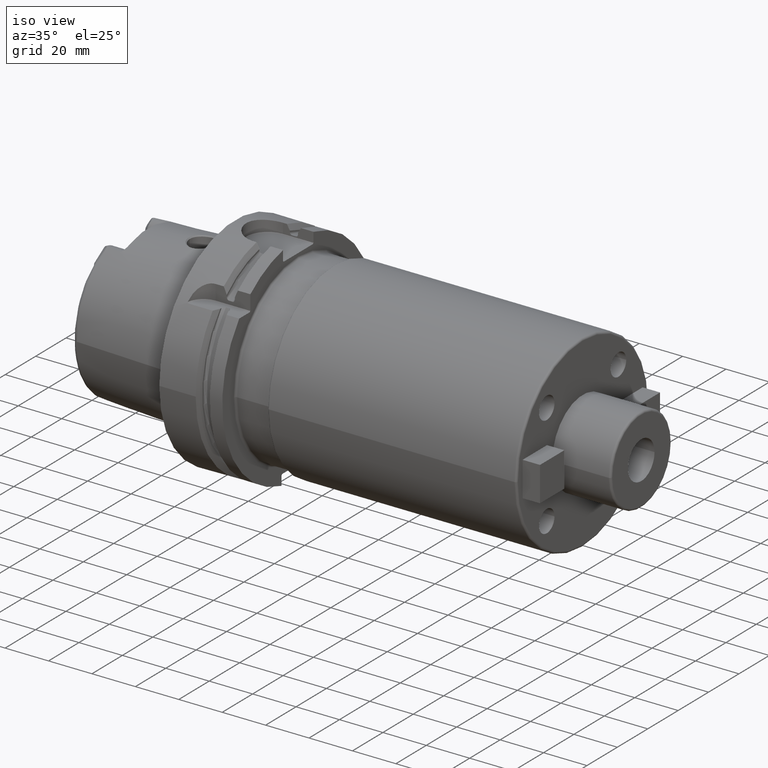
[diagram: clean part render]
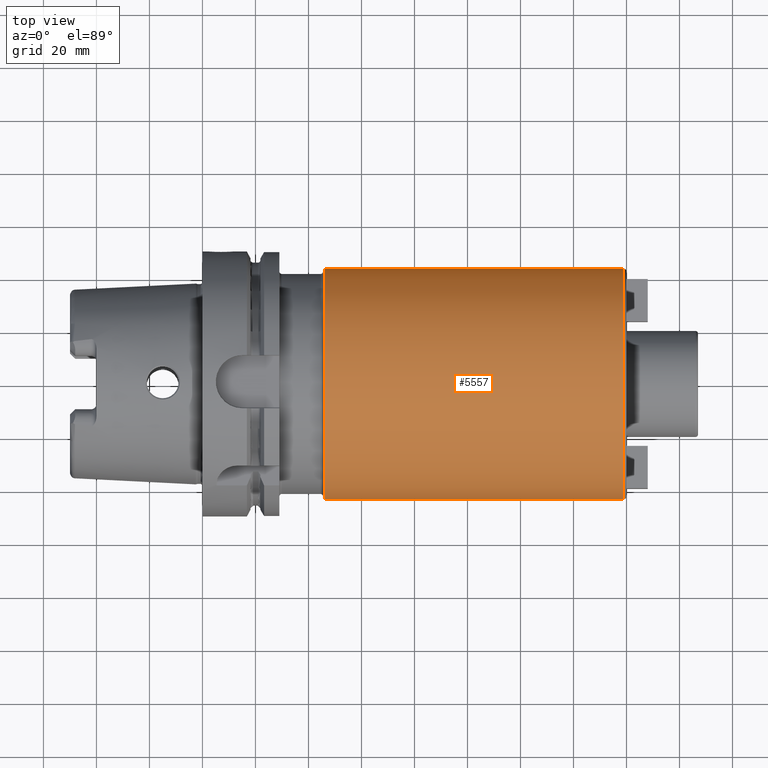
[diagram: tour spotlight — one face highlighted and labeled with its STEP entity id]
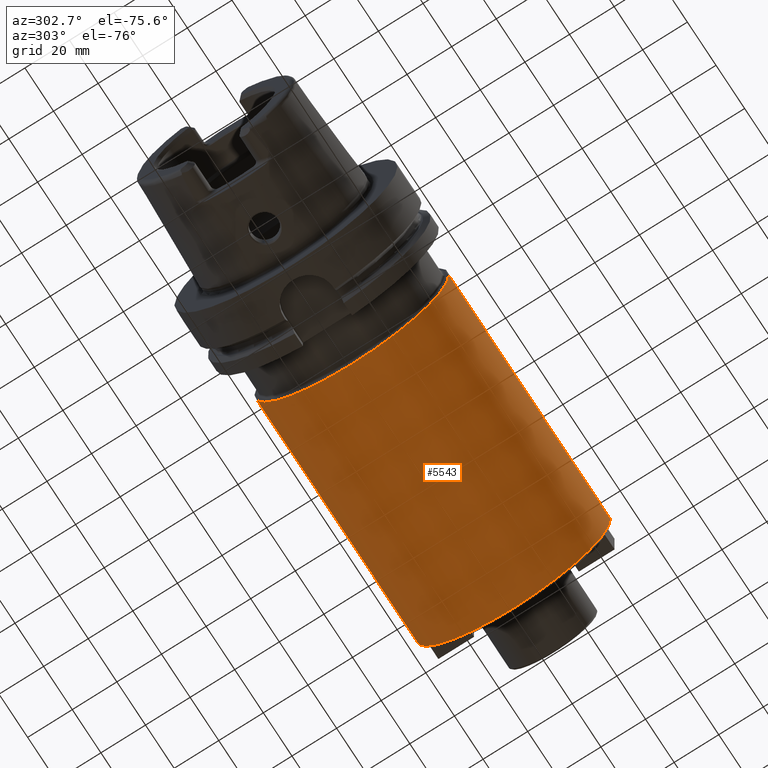
[diagram: tour spotlight — one face highlighted and labeled with its STEP entity id]
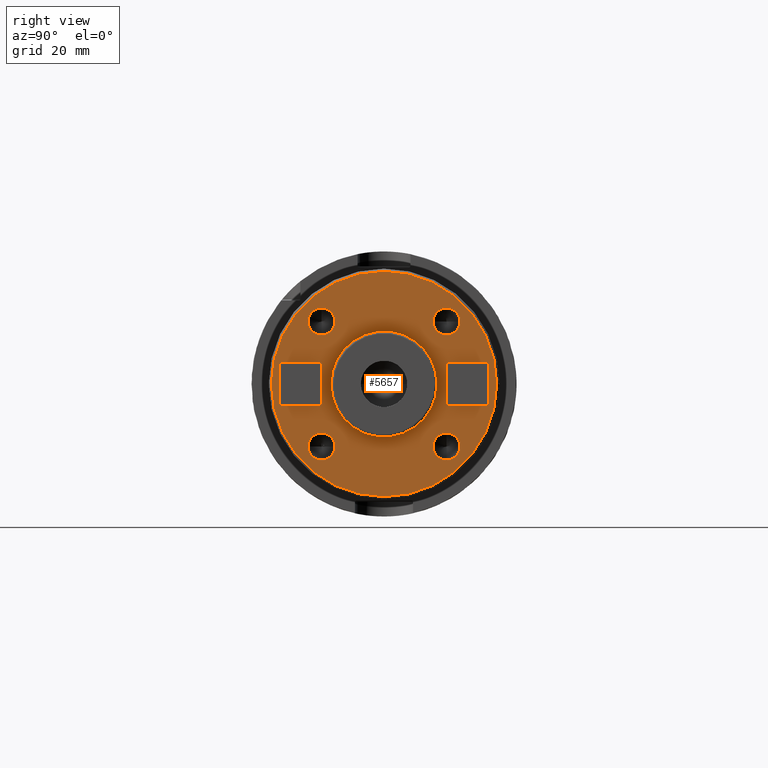
[diagram: tour spotlight — one face highlighted and labeled with its STEP entity id]
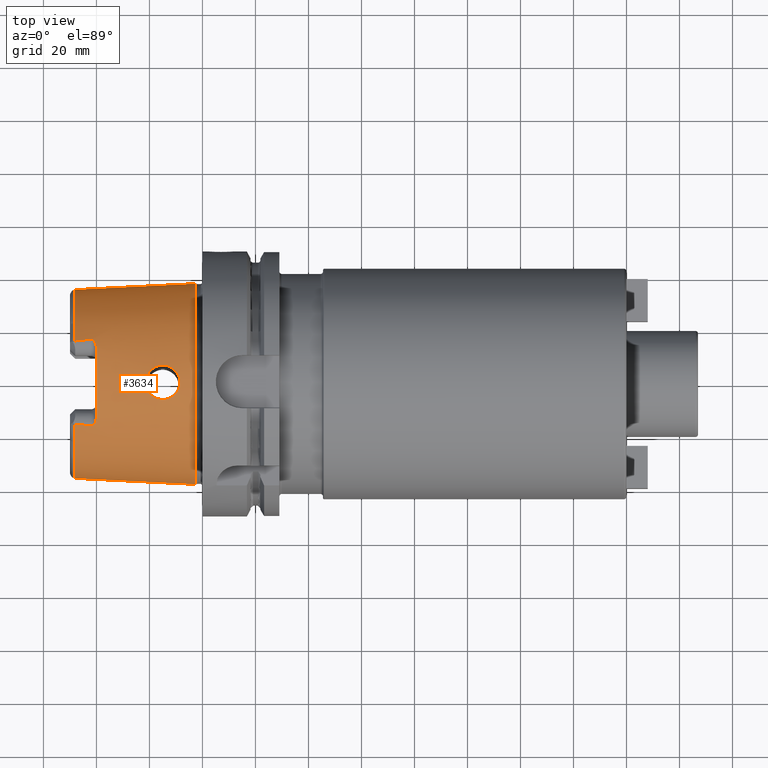
[diagram: tour spotlight — one face highlighted and labeled with its STEP entity id]
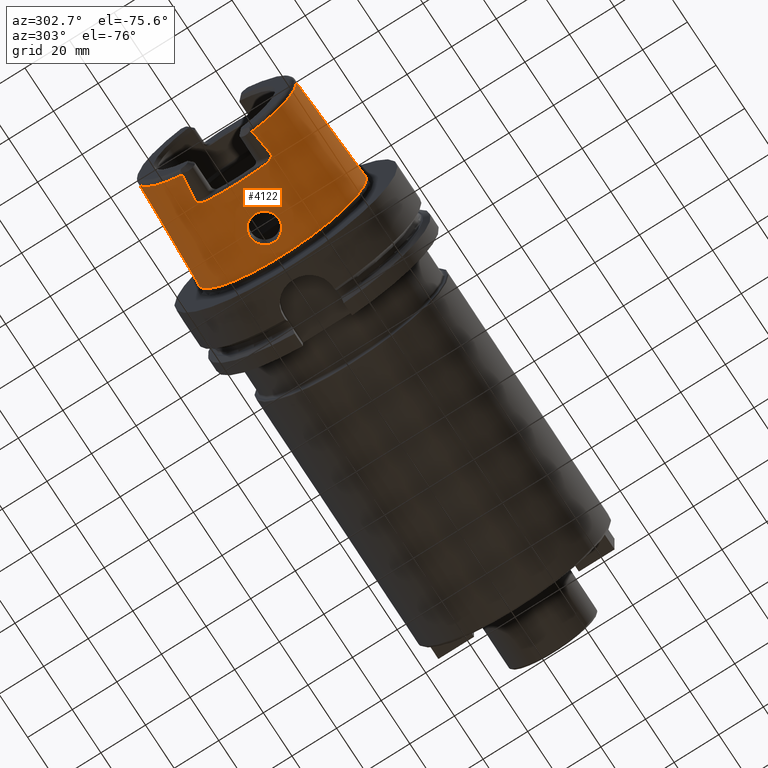
[diagram: tour spotlight — one face highlighted and labeled with its STEP entity id]
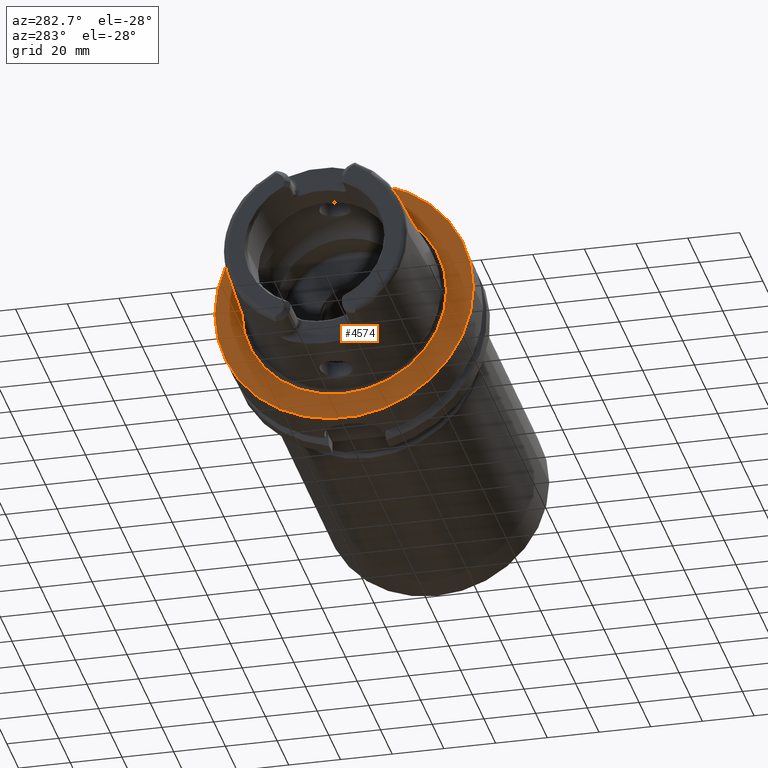
[diagram: tour spotlight — one face highlighted and labeled with its STEP entity id]
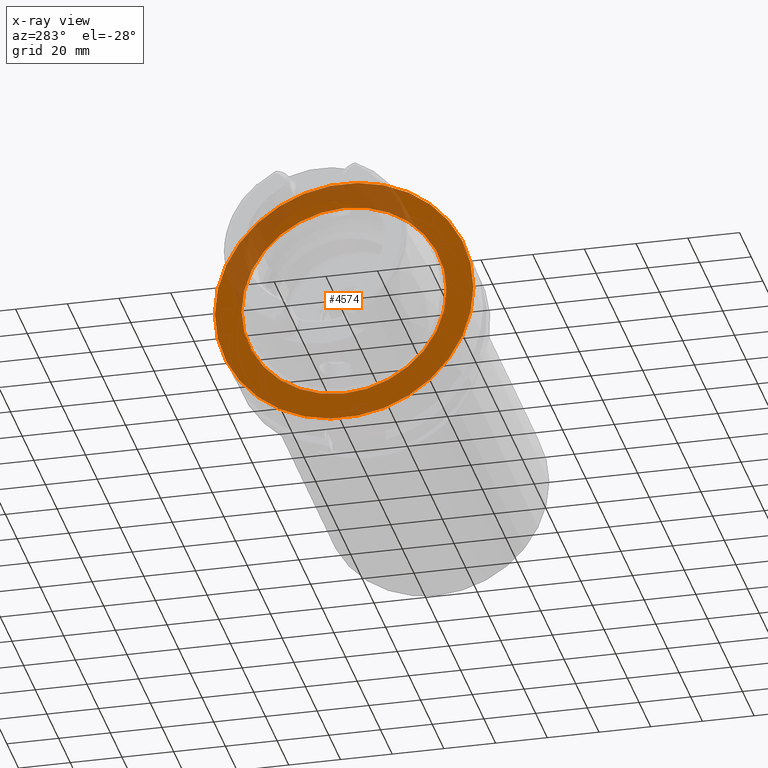
[diagram: x-ray of the same camera — body ghosted, this tour face saturated]
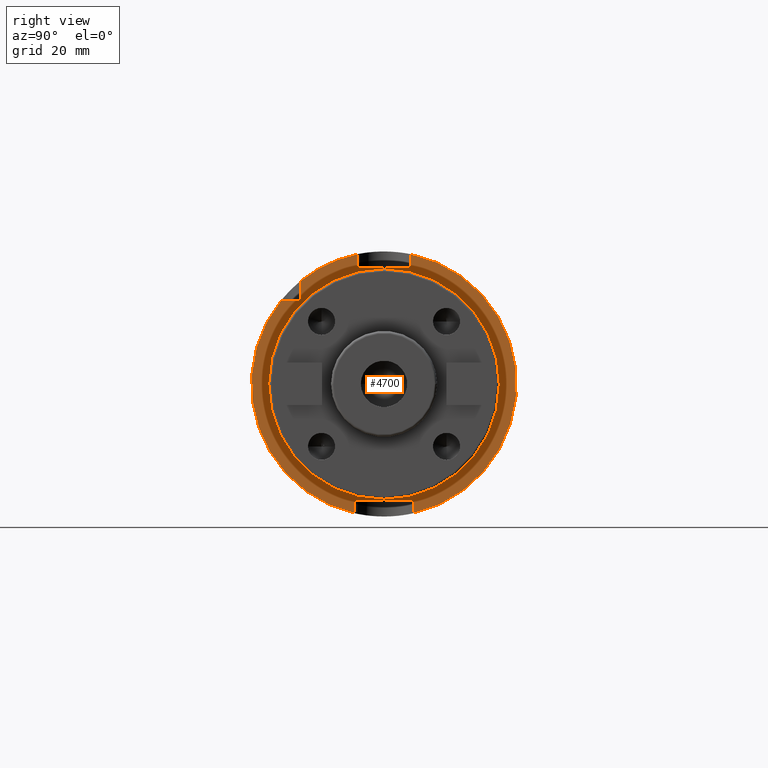
[diagram: tour spotlight — one face highlighted and labeled with its STEP entity id]
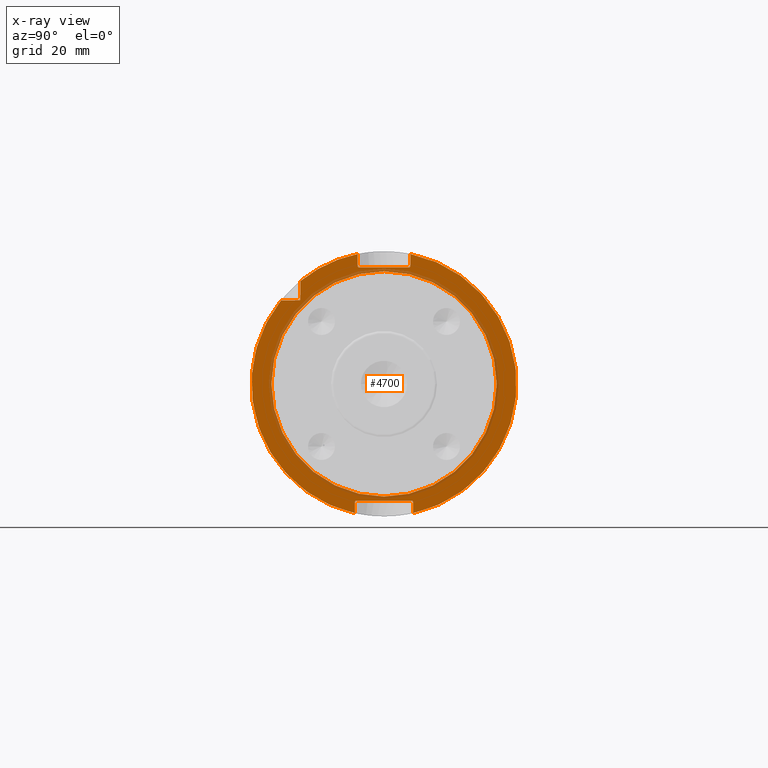
[diagram: x-ray of the same camera — body ghosted, this tour face saturated]
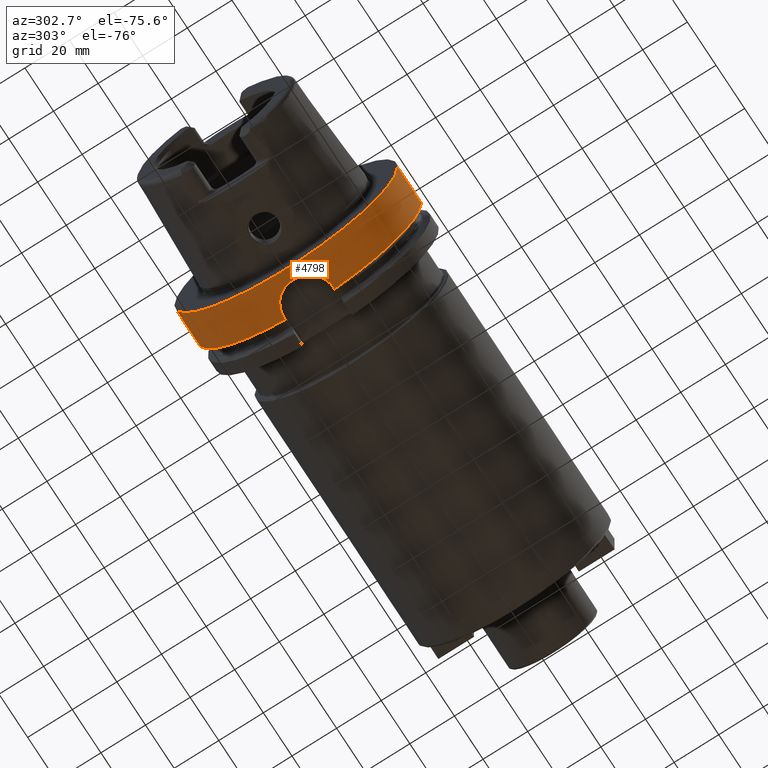
[diagram: tour spotlight — one face highlighted and labeled with its STEP entity id]
A machine part: a face-by-face anatomy tour. The part has 226 B-rep faces; the first image is the clean iso view, then the 8 largest visible faces are spotlighted one at a time (largest first), each with its STEP entity span.

Face 1 — top view, entity #5557. In plain terms, the highlighted cylindrical surface (partial cylindrical patch) has radius 43.5 mm, axis along (1, 0, 0).
Definition (entity closure, byte-faithful):
#1888=DIRECTION('',(-1.E0,0.E0,0.E0));
#1889=VECTOR('',#1888,1.13E2);
#1890=CARTESIAN_POINT('',(1.59E2,-4.35E1,1.303957435187E-14));
#1891=LINE('',#1890,#1889);
#1897=DIRECTION('',(-1.E0,0.E0,0.E0));
#1898=VECTOR('',#1897,1.13E2);
#1899=CARTESIAN_POINT('',(1.59E2,4.35E1,-1.437137774595E-14));
#1900=LINE('',#1899,#1898);
#1901=CARTESIAN_POINT('',(4.6E1,0.E0,0.E0));
#1902=DIRECTION('',(1.E0,0.E0,0.E0));
#1903=DIRECTION('',(0.E0,1.E0,0.E0));
#1904=AXIS2_PLACEMENT_3D('',#1901,#1902,#1903);
#1906=CARTESIAN_POINT('',(1.59E2,0.E0,0.E0));
#1907=DIRECTION('',(-1.E0,0.E0,0.E0));
#1908=DIRECTION('',(0.E0,-1.E0,0.E0));
#1909=AXIS2_PLACEMENT_3D('',#1906,#1907,#1908);
#3475=CARTESIAN_POINT('',(1.59E2,4.35E1,0.E0));
#3476=CARTESIAN_POINT('',(1.59E2,-4.35E1,-1.065442715258E-14));
#3477=VERTEX_POINT('',#3475);
#3478=VERTEX_POINT('',#3476);
#3589=CARTESIAN_POINT('',(4.6E1,-4.35E1,-1.065442715258E-14));
#3590=CARTESIAN_POINT('',(4.6E1,4.35E1,0.E0));
#3591=VERTEX_POINT('',#3589);
#3592=VERTEX_POINT('',#3590);
#5544=CARTESIAN_POINT('',(2.11E1,0.E0,0.E0));
#5545=DIRECTION('',(1.E0,0.E0,0.E0));
#5546=DIRECTION('',(0.E0,-1.E0,0.E0));
#5547=AXIS2_PLACEMENT_3D('',#5544,#5545,#5546);
#5548=CYLINDRICAL_SURFACE('',#5547,4.35E1);
#5550=ORIENTED_EDGE('',*,*,#5549,.F.);
#5551=ORIENTED_EDGE('',*,*,#5539,.F.);
#5553=ORIENTED_EDGE('',*,*,#5552,.F.);
#5554=ORIENTED_EDGE('',*,*,#5535,.T.);
#5555=EDGE_LOOP('',(#5550,#5551,#5553,#5554));
#5556=FACE_OUTER_BOUND('',#5555,.F.);
#5557=ADVANCED_FACE('',(#5556),#5548,.T.);
#1905=CIRCLE('',#1904,4.35E1);
#1910=CIRCLE('',#1909,4.35E1);
#5535=EDGE_CURVE('',#3478,#3591,#1891,.T.);
#5539=EDGE_CURVE('',#3477,#3592,#1900,.T.);
#5549=EDGE_CURVE('',#3592,#3591,#1905,.T.);
#5552=EDGE_CURVE('',#3478,#3477,#1910,.T.);

Face 2 — auxiliary view, entity #5543. In plain terms, the highlighted cylindrical surface (partial cylindrical patch) has radius 43.5 mm, axis along (1, 0, 0).
Definition (entity closure, byte-faithful):
#1883=CARTESIAN_POINT('',(4.6E1,0.E0,0.E0));
#1884=DIRECTION('',(1.E0,0.E0,0.E0));
#1885=DIRECTION('',(0.E0,-1.E0,0.E0));
#1886=AXIS2_PLACEMENT_3D('',#1883,#1884,#1885);
#1888=DIRECTION('',(-1.E0,0.E0,0.E0));
#1889=VECTOR('',#1888,1.13E2);
#1890=CARTESIAN_POINT('',(1.59E2,-4.35E1,1.303957435187E-14));
#1891=LINE('',#1890,#1889);
#1892=CARTESIAN_POINT('',(1.59E2,0.E0,0.E0));
#1893=DIRECTION('',(-1.E0,0.E0,0.E0));
#1894=DIRECTION('',(0.E0,1.E0,0.E0));
#1895=AXIS2_PLACEMENT_3D('',#1892,#1893,#1894);
#1897=DIRECTION('',(-1.E0,0.E0,0.E0));
#1898=VECTOR('',#1897,1.13E2);
#1899=CARTESIAN_POINT('',(1.59E2,4.35E1,-1.437137774595E-14));
#1900=LINE('',#1899,#1898);
#3475=CARTESIAN_POINT('',(1.59E2,4.35E1,0.E0));
#3476=CARTESIAN_POINT('',(1.59E2,-4.35E1,-1.065442715258E-14));
#3477=VERTEX_POINT('',#3475);
#3478=VERTEX_POINT('',#3476);
#3589=CARTESIAN_POINT('',(4.6E1,-4.35E1,-1.065442715258E-14));
#3590=CARTESIAN_POINT('',(4.6E1,4.35E1,0.E0));
#3591=VERTEX_POINT('',#3589);
#3592=VERTEX_POINT('',#3590);
#5529=CARTESIAN_POINT('',(2.11E1,0.E0,0.E0));
#5530=DIRECTION('',(1.E0,0.E0,0.E0));
#5531=DIRECTION('',(0.E0,-1.E0,0.E0));
#5532=AXIS2_PLACEMENT_3D('',#5529,#5530,#5531);
#5533=CYLINDRICAL_SURFACE('',#5532,4.35E1);
#5534=ORIENTED_EDGE('',*,*,#5519,.F.);
#5536=ORIENTED_EDGE('',*,*,#5535,.F.);
#5538=ORIENTED_EDGE('',*,*,#5537,.F.);
#5540=ORIENTED_EDGE('',*,*,#5539,.T.);
#5541=EDGE_LOOP('',(#5534,#5536,#5538,#5540));
#5542=FACE_OUTER_BOUND('',#5541,.F.);
#5543=ADVANCED_FACE('',(#5542),#5533,.T.);
#1887=CIRCLE('',#1886,4.35E1);
#1896=CIRCLE('',#1895,4.35E1);
#5519=EDGE_CURVE('',#3591,#3592,#1887,.T.);
#5535=EDGE_CURVE('',#3478,#3591,#1891,.T.);
#5537=EDGE_CURVE('',#3477,#3478,#1896,.T.);
#5539=EDGE_CURVE('',#3477,#3592,#1900,.T.);

Face 3 — right view, entity #5657. In plain terms, the highlighted planar face has unit normal (1, 0, 0).
Definition (entity closure, byte-faithful):
#1926=CARTESIAN_POINT('',(1.6E2,0.E0,0.E0));
#1927=DIRECTION('',(1.E0,0.E0,0.E0));
#1928=DIRECTION('',(0.E0,1.E0,0.E0));
#1929=AXIS2_PLACEMENT_3D('',#1926,#1927,#1928);
#1931=CARTESIAN_POINT('',(1.6E2,0.E0,0.E0));
#1932=DIRECTION('',(-1.E0,0.E0,0.E0));
#1933=DIRECTION('',(0.E0,1.E0,0.E0));
#1934=AXIS2_PLACEMENT_3D('',#1931,#1932,#1933);
#1936=CARTESIAN_POINT('',(1.6E2,0.E0,0.E0));
#1937=DIRECTION('',(-1.E0,0.E0,0.E0));
#1938=DIRECTION('',(0.E0,1.E0,0.E0));
#1939=AXIS2_PLACEMENT_3D('',#1936,#1937,#1938);
#1941=CARTESIAN_POINT('',(1.6E2,0.E0,0.E0));
#1942=DIRECTION('',(-1.E0,0.E0,0.E0));
#1943=DIRECTION('',(0.E0,-1.E0,0.E0));
#1944=AXIS2_PLACEMENT_3D('',#1941,#1942,#1943);
#1946=DIRECTION('',(0.E0,-1.E0,0.E0));
#1947=VECTOR('',#1946,1.6E1);
#1948=CARTESIAN_POINT('',(1.6E2,3.95E1,8.E0));
#1949=LINE('',#1948,#1947);
#1950=DIRECTION('',(0.E0,0.E0,-1.E0));
#1951=VECTOR('',#1950,1.6E1);
#1952=CARTESIAN_POINT('',(1.6E2,2.35E1,8.E0));
#1953=LINE('',#1952,#1951);
#1954=DIRECTION('',(0.E0,1.E0,0.E0));
#1955=VECTOR('',#1954,1.6E1);
#1956=CARTESIAN_POINT('',(1.6E2,2.35E1,-8.E0));
#1957=LINE('',#1956,#1955);
#1958=DIRECTION('',(0.E0,0.E0,1.E0));
#1959=VECTOR('',#1958,1.6E1);
#1960=CARTESIAN_POINT('',(1.6E2,3.95E1,-8.E0));
#1961=LINE('',#1960,#1959);
#1962=DIRECTION('',(0.E0,-1.E0,0.E0));
#1963=VECTOR('',#1962,1.6E1);
#1964=CARTESIAN_POINT('',(1.6E2,-2.35E1,8.E0));
#1965=LINE('',#1964,#1963);
#1966=DIRECTION('',(0.E0,0.E0,-1.E0));
#1967=VECTOR('',#1966,1.6E1);
#1968=CARTESIAN_POINT('',(1.6E2,-3.95E1,8.E0));
#1969=LINE('',#1968,#1967);
#1970=DIRECTION('',(0.E0,1.E0,0.E0));
#1971=VECTOR('',#1970,1.6E1);
#1972=CARTESIAN_POINT('',(1.6E2,-3.95E1,-8.E0));
#1973=LINE('',#1972,#1971);
#1974=DIRECTION('',(0.E0,0.E0,1.E0));
#1975=VECTOR('',#1974,1.6E1);
#1976=CARTESIAN_POINT('',(1.6E2,-2.35E1,-8.E0));
#1977=LINE('',#1976,#1975);
#1978=CARTESIAN_POINT('',(1.6E2,2.358201115257E1,2.358201115257E1));
#1979=DIRECTION('',(1.E0,0.E0,0.E0));
#1980=DIRECTION('',(0.E0,-1.E0,0.E0));
#1981=AXIS2_PLACEMENT_3D('',#1978,#1979,#1980);
#1983=CARTESIAN_POINT('',(1.6E2,2.358201115257E1,2.358201115257E1));
#1984=DIRECTION('',(1.E0,0.E0,0.E0));
#1985=DIRECTION('',(0.E0,1.E0,0.E0));
#1986=AXIS2_PLACEMENT_3D('',#1983,#1984,#1985);
#1988=CARTESIAN_POINT('',(1.6E2,-2.358201115257E1,2.358201115257E1));
#1989=DIRECTION('',(1.E0,0.E0,0.E0));
#1990=DIRECTION('',(0.E0,0.E0,-1.E0));
#1991=AXIS2_PLACEMENT_3D('',#1988,#1989,#1990);
#1993=CARTESIAN_POINT('',(1.6E2,-2.358201115257E1,2.358201115257E1));
#1994=DIRECTION('',(1.E0,0.E0,0.E0));
#1995=DIRECTION('',(0.E0,0.E0,1.E0));
#1996=AXIS2_PLACEMENT_3D('',#1993,#1994,#1995);
#1998=CARTESIAN_POINT('',(1.6E2,-2.358201115257E1,-2.358201115257E1));
#1999=DIRECTION('',(1.E0,0.E0,0.E0));
#2000=DIRECTION('',(0.E0,1.E0,0.E0));
#2001=AXIS2_PLACEMENT_3D('',#1998,#1999,#2000);
#2003=CARTESIAN_POINT('',(1.6E2,-2.358201115257E1,-2.358201115257E1));
#2004=DIRECTION('',(1.E0,0.E0,0.E0));
#2005=DIRECTION('',(0.E0,-1.E0,0.E0));
#2006=AXIS2_PLACEMENT_3D('',#2003,#2004,#2005);
#2008=CARTESIAN_POINT('',(1.6E2,2.358201115257E1,-2.358201115257E1));
#2009=DIRECTION('',(1.E0,0.E0,0.E0));
#2010=DIRECTION('',(0.E0,0.E0,1.E0));
#2011=AXIS2_PLACEMENT_3D('',#2008,#2009,#2010);
#2013=CARTESIAN_POINT('',(1.6E2,2.358201115257E1,-2.358201115257E1));
#2014=DIRECTION('',(1.E0,0.E0,0.E0));
#2015=DIRECTION('',(0.E0,0.E0,-1.E0));
#2016=AXIS2_PLACEMENT_3D('',#2013,#2014,#2015);
#3471=CARTESIAN_POINT('',(1.6E2,2.E1,0.E0));
#3472=CARTESIAN_POINT('',(1.6E2,-2.E1,0.E0));
#3473=VERTEX_POINT('',#3471);
#3474=VERTEX_POINT('',#3472);
#3479=CARTESIAN_POINT('',(1.6E2,4.25E1,0.E0));
#3480=CARTESIAN_POINT('',(1.6E2,-4.25E1,-1.040949779275E-14));
#3481=VERTEX_POINT('',#3479);
#3482=VERTEX_POINT('',#3480);
#3517=CARTESIAN_POINT('',(1.6E2,3.95E1,8.E0));
#3518=CARTESIAN_POINT('',(1.6E2,2.35E1,8.E0));
#3519=VERTEX_POINT('',#3517);
#3520=VERTEX_POINT('',#3518);
#3521=CARTESIAN_POINT('',(1.6E2,2.35E1,-8.E0));
#3522=VERTEX_POINT('',#3521);
#3523=CARTESIAN_POINT('',(1.6E2,3.95E1,-8.E0));
#3524=VERTEX_POINT('',#3523);
#3525=CARTESIAN_POINT('',(1.6E2,-2.35E1,8.E0));
#3526=CARTESIAN_POINT('',(1.6E2,-3.95E1,8.E0));
#3527=VERTEX_POINT('',#3525);
#3528=VERTEX_POINT('',#3526);
#3529=CARTESIAN_POINT('',(1.6E2,-3.95E1,-8.E0));
#3530=VERTEX_POINT('',#3529);
#3531=CARTESIAN_POINT('',(1.6E2,-2.35E1,-8.E0));
#3532=VERTEX_POINT('',#3531);
#3539=CARTESIAN_POINT('',(1.6E2,1.848201115257E1,2.358201115257E1));
#3540=CARTESIAN_POINT('',(1.6E2,2.868201115257E1,2.358201115257E1));
#3541=VERTEX_POINT('',#3539);
#3542=VERTEX_POINT('',#3540);
#3549=CARTESIAN_POINT('',(1.6E2,-2.358201115257E1,1.848201115257E1));
#3550=CARTESIAN_POINT('',(1.6E2,-2.358201115257E1,2.868201115257E1));
#3551=VERTEX_POINT('',#3549);
#3552=VERTEX_POINT('',#3550);
#3559=CARTESIAN_POINT('',(1.6E2,-1.848201115257E1,-2.358201115257E1));
#3560=CARTESIAN_POINT('',(1.6E2,-2.868201115257E1,-2.358201115257E1));
#3561=VERTEX_POINT('',#3559);
#3562=VERTEX_POINT('',#3560);
#3569=CARTESIAN_POINT('',(1.6E2,2.358201115257E1,-1.848201115257E1));
#3570=CARTESIAN_POINT('',(1.6E2,2.358201115257E1,-2.868201115257E1));
#3571=VERTEX_POINT('',#3569);
#3572=VERTEX_POINT('',#3570);
#5598=CARTESIAN_POINT('',(1.6E2,0.E0,0.E0));
#5599=DIRECTION('',(1.E0,0.E0,0.E0));
#5600=DIRECTION('',(0.E0,-1.E0,0.E0));
#5601=AXIS2_PLACEMENT_3D('',#5598,#5599,#5600);
#5602=PLANE('',#5601);
#5603=ORIENTED_EDGE('',*,*,#5592,.T.);
#5604=ORIENTED_EDGE('',*,*,#5578,.T.);
#5605=EDGE_LOOP('',(#5603,#5604));
#5606=FACE_OUTER_BOUND('',#5605,.F.);
#5608=ORIENTED_EDGE('',*,*,#5607,.T.);
#5610=ORIENTED_EDGE('',*,*,#5609,.F.);
#5611=EDGE_LOOP('',(#5608,#5610));
#5612=FACE_BOUND('',#5611,.F.);
#5614=ORIENTED_EDGE('',*,*,#5613,.T.);
#5616=ORIENTED_EDGE('',*,*,#5615,.T.);
#5618=ORIENTED_EDGE('',*,*,#5617,.T.);
#5620=ORIENTED_EDGE('',*,*,#5619,.T.);
#5621=EDGE_LOOP('',(#5614,#5616,#5618,#5620));
#5622=FACE_BOUND('',#5621,.F.);
#5624=ORIENTED_EDGE('',*,*,#5623,.T.);
#5626=ORIENTED_EDGE('',*,*,#5625,.T.);
#5628=ORIENTED_EDGE('',*,*,#5627,.T.);
#5630=ORIENTED_EDGE('',*,*,#5629,.T.);
#5631=EDGE_LOOP('',(#5624,#5626,#5628,#5630));
#5632=FACE_BOUND('',#5631,.F.);
#5634=ORIENTED_EDGE('',*,*,#5633,.T.);
#5636=ORIENTED_EDGE('',*,*,#5635,.T.);
#5637=EDGE_LOOP('',(#5634,#5636));
#5638=FACE_BOUND('',#5637,.F.);
#5640=ORIENTED_EDGE('',*,*,#5639,.T.);
#5642=ORIENTED_EDGE('',*,*,#5641,.T.);
#5643=EDGE_LOOP('',(#5640,#5642));
#5644=FACE_BOUND('',#5643,.F.);
#5646=ORIENTED_EDGE('',*,*,#5645,.T.);
#5648=ORIENTED_EDGE('',*,*,#5647,.T.);
#5649=EDGE_LOOP('',(#5646,#5648));
#5650=FACE_BOUND('',#5649,.F.);
#5652=ORIENTED_EDGE('',*,*,#5651,.T.);
#5654=ORIENTED_EDGE('',*,*,#5653,.T.);
#5655=EDGE_LOOP('',(#5652,#5654));
#5656=FACE_BOUND('',#5655,.F.);
#5657=ADVANCED_FACE('',(#5606,#5612,#5622,#5632,#5638,#5644,#5650,#5656),#5602,
.T.);
#1930=CIRCLE('',#1929,2.E1);
#1935=CIRCLE('',#1934,2.E1);
#1940=CIRCLE('',#1939,4.25E1);
#1945=CIRCLE('',#1944,4.25E1);
#1982=CIRCLE('',#1981,5.1E0);
#1987=CIRCLE('',#1986,5.1E0);
#1992=CIRCLE('',#1991,5.1E0);
#1997=CIRCLE('',#1996,5.1E0);
#2002=CIRCLE('',#2001,5.1E0);
#2007=CIRCLE('',#2006,5.1E0);
#2012=CIRCLE('',#2011,5.1E0);
#2017=CIRCLE('',#2016,5.1E0);
#5578=EDGE_CURVE('',#3482,#3481,#1945,.T.);
#5592=EDGE_CURVE('',#3481,#3482,#1940,.T.);
#5607=EDGE_CURVE('',#3473,#3474,#1930,.T.);
#5609=EDGE_CURVE('',#3473,#3474,#1935,.T.);
#5613=EDGE_CURVE('',#3519,#3520,#1949,.T.);
#5615=EDGE_CURVE('',#3520,#3522,#1953,.T.);
#5617=EDGE_CURVE('',#3522,#3524,#1957,.T.);
#5619=EDGE_CURVE('',#3524,#3519,#1961,.T.);
#5623=EDGE_CURVE('',#3527,#3528,#1965,.T.);
#5625=EDGE_CURVE('',#3528,#3530,#1969,.T.);
#5627=EDGE_CURVE('',#3530,#3532,#1973,.T.);
#5629=EDGE_CURVE('',#3532,#3527,#1977,.T.);
#5633=EDGE_CURVE('',#3541,#3542,#1982,.T.);
#5635=EDGE_CURVE('',#3542,#3541,#1987,.T.);
#5639=EDGE_CURVE('',#3551,#3552,#1992,.T.);
#5641=EDGE_CURVE('',#3552,#3551,#1997,.T.);
#5645=EDGE_CURVE('',#3561,#3562,#2002,.T.);
#5647=EDGE_CURVE('',#3562,#3561,#2007,.T.);
#5651=EDGE_CURVE('',#3571,#3572,#2012,.T.);
#5653=EDGE_CURVE('',#3572,#3571,#2017,.T.);

Face 4 — top view, entity #3634. In plain terms, the highlighted conical surface has half-angle 2.868 deg.
Definition (entity closure, byte-faithful):
#2=CARTESIAN_POINT('',(-4.810007448473E1,-1.567653238626E1,3.196E1));
#3=CARTESIAN_POINT('',(-4.743649089753E1,-1.575202511592E1,3.196E1));
#4=CARTESIAN_POINT('',(-4.609985749196E1,-1.590320831227E1,3.196E1));
#5=CARTESIAN_POINT('',(-4.406668280177E1,-1.613055880919E1,3.196E1));
#6=CARTESIAN_POINT('',(-4.269206894520E1,-1.628254944441E1,3.196E1));
#7=CARTESIAN_POINT('',(-4.2E1,-1.635864758744E1,3.196E1));
#9=CARTESIAN_POINT('',(-4.E1,0.E0,0.E0));
#10=DIRECTION('',(1.E0,0.E0,0.E0));
#11=DIRECTION('',(0.E0,3.574556786365E-1,9.339301032789E-1));
#12=AXIS2_PLACEMENT_3D('',#9,#10,#11);
#14=CARTESIAN_POINT('',(-4.2E1,1.635864758744E1,3.196E1));
#15=CARTESIAN_POINT('',(-4.269204070145E1,1.628255255002E1,3.196E1));
#16=CARTESIAN_POINT('',(-4.406661691692E1,1.613056612298E1,3.196E1));
#17=CARTESIAN_POINT('',(-4.609979244919E1,1.590321563865E1,3.196E1));
#18=CARTESIAN_POINT('',(-4.743646302974E1,1.575202828631E1,3.196E1));
#19=CARTESIAN_POINT('',(-4.810007448473E1,1.567653238626E1,3.196E1));
#21=CARTESIAN_POINT('',(-2.5E0,0.E0,0.E0));
#22=DIRECTION('',(1.E0,0.E0,0.E0));
#23=DIRECTION('',(0.E0,1.E0,0.E0));
#24=AXIS2_PLACEMENT_3D('',#21,#22,#23);
#26=CARTESIAN_POINT('',(-2.149938207697E1,5.552926221647E-11,3.693037254664E1));
#27=CARTESIAN_POINT('',(-2.149947810722E1,2.456946967410E-1,3.693041400584E1));
#28=CARTESIAN_POINT('',(-2.146978943123E1,7.663421073483E-1,3.692663668754E1));
#29=CARTESIAN_POINT('',(-2.132902699242E1,1.552723327933E0,3.690919478302E1));
#30=CARTESIAN_POINT('',(-2.108091480959E1,2.342139536845E0,3.687974365394E1));
#31=CARTESIAN_POINT('',(-2.073440330363E1,3.094103832942E0,3.684140909161E1));
#32=CARTESIAN_POINT('',(-2.029456045373E1,3.796705318232E0,3.679744070735E1));
#33=CARTESIAN_POINT('',(-1.976895967621E1,4.437440706102E0,3.675180792921E1));
#34=CARTESIAN_POINT('',(-1.916766491360E1,5.004833501251E0,3.670884542936E1));
#35=CARTESIAN_POINT('',(-1.850089510031E1,5.490460623479E0,3.667275311991E1));
#36=CARTESIAN_POINT('',(-1.777939225152E1,5.887431777884E0,3.664739565010E1));
#37=CARTESIAN_POINT('',(-1.701424609593E1,6.190220322635E0,3.663607600264E1));
#38=CARTESIAN_POINT('',(-1.621758055837E1,6.394419176819E0,3.664131821143E1));
#39=CARTESIAN_POINT('',(-1.539955429301E1,6.497326105441E0,3.666474029556E1));
#40=CARTESIAN_POINT('',(-1.457114975166E1,6.496134002949E0,3.670710840669E1));
#41=CARTESIAN_POINT('',(-1.375127425398E1,6.390454994673E0,3.676745544266E1));
#42=CARTESIAN_POINT('',(-1.294983719070E1,6.181706493026E0,3.684404556607E1));
#43=CARTESIAN_POINT('',(-1.217938970715E1,5.872066509057E0,3.693403258601E1));
#44=CARTESIAN_POINT('',(-1.145343003562E1,5.466036101540E0,3.703341626103E1));
#45=CARTESIAN_POINT('',(-1.078465658031E1,4.970022940288E0,3.713742863004E1));
#46=CARTESIAN_POINT('',(-1.018517891880E1,4.392789013038E0,3.724075525816E1));
#47=CARTESIAN_POINT('',(-9.665388344352E0,3.744837411386E0,3.733802077293E1));
#48=CARTESIAN_POINT('',(-9.234092519568E0,3.038687491876E0,3.742410507514E1));
#49=CARTESIAN_POINT('',(-8.897351452215E0,2.287331206380E0,3.749468513875E1));
#50=CARTESIAN_POINT('',(-8.658527750933E0,1.501792221622E0,3.754652778726E1));
#51=CARTESIAN_POINT('',(-8.527369438248E0,7.337668322055E-1,3.757562813366E1));
#52=CARTESIAN_POINT('',(-8.500550849541E0,2.307484502453E-1,3.758164606668E1));
#53=CARTESIAN_POINT('',(-8.500618238409E0,-3.201212427053E-11,
3.758161093072E1));
#55=CARTESIAN_POINT('',(-8.500618238409E0,-3.201212427053E-11,
3.758161093072E1));
#56=CARTESIAN_POINT('',(-8.500529243712E0,-2.424312186462E-1,3.758165761842E1));
#57=CARTESIAN_POINT('',(-8.529377584627E0,-7.570713761110E-1,3.757517365272E1));
#58=CARTESIAN_POINT('',(-8.666699960505E0,-1.535920192154E0,3.754473037167E1));
#59=CARTESIAN_POINT('',(-8.909712492800E0,-2.320075305293E0,3.749204213674E1));
#60=CARTESIAN_POINT('',(-9.250504215006E0,-3.069650750447E0,3.742074072411E1));
#61=CARTESIAN_POINT('',(-9.685687617568E0,-3.773592271729E0,3.733408895737E1));
#62=CARTESIAN_POINT('',(-1.020908185061E1,-4.418816591912E0,3.723645352953E1));
#63=CARTESIAN_POINT('',(-1.081164311031E1,-4.992724782849E0,3.713300191729E1));
#64=CARTESIAN_POINT('',(-1.148289197008E1,-5.484961003997E0,3.702910971345E1));
#65=CARTESIAN_POINT('',(-1.221077052890E1,-5.886958600290E0,3.693005620282E1));
#66=CARTESIAN_POINT('',(-1.298272715167E1,-6.192450910075E0,3.684056019680E1));
#67=CARTESIAN_POINT('',(-1.378543745730E1,-6.397007236175E0,3.676457229973E1));
#68=CARTESIAN_POINT('',(-1.460657276070E1,-6.498354658048E0,3.670491060908E1));
#69=CARTESIAN_POINT('',(-1.543495839616E1,-6.495033034286E0,3.666334714016E1));
#70=CARTESIAN_POINT('',(-1.625254215847E1,-6.387680563827E0,3.664072182306E1));
#71=CARTESIAN_POINT('',(-1.704827269515E1,-6.179075952149E0,3.663623858926E1));
#72=CARTESIAN_POINT('',(-1.781166108930E1,-5.872129661425E0,3.664822647582E1));
#73=CARTESIAN_POINT('',(-1.853088883617E1,-5.471276112331E0,3.667411627299E1));
#74=CARTESIAN_POINT('',(-1.919496044775E1,-4.982042332370E0,3.671058230959E1));
#75=CARTESIAN_POINT('',(-1.979312959260E1,-4.411388967116E0,3.675374151488E1));
#76=CARTESIAN_POINT('',(-2.031520136204E1,-3.767815751250E0,3.679938652908E1));
#77=CARTESIAN_POINT('',(-2.075116173440E1,-3.062888856216E0,3.684318827995E1));
#78=CARTESIAN_POINT('',(-2.109352623852E1,-2.309166702590E0,3.688120055672E1));
#79=CARTESIAN_POINT('',(-2.133733752753E1,-1.518482485311E0,3.691020909579E1));
#80=CARTESIAN_POINT('',(-2.147183542910E1,-7.429704319279E-1,3.692690027450E1));
#81=CARTESIAN_POINT('',(-2.149945558988E1,-2.340112752743E-1,3.693040395664E1));
#82=CARTESIAN_POINT('',(-2.149938207697E1,5.552926221647E-11,3.693037254664E1));
#248=CARTESIAN_POINT('',(-4.044615405310E1,1.501E1,3.270080868281E1));
#249=CARTESIAN_POINT('',(-4.036716971646E1,1.480714421409E1,3.279827559643E1));
#250=CARTESIAN_POINT('',(-4.023151678165E1,1.441318283024E1,3.298193753654E1));
#251=CARTESIAN_POINT('',(-4.009402199227E1,1.386111148947E1,3.322490472400E1));
#252=CARTESIAN_POINT('',(-4.001617021866E1,1.334582492697E1,3.343918234932E1));
#253=CARTESIAN_POINT('',(-4.E1,1.302441475567E1,3.356551938374E1));
#254=CARTESIAN_POINT('',(-4.E1,1.286965552579E1,3.362475247340E1));
#312=CARTESIAN_POINT('',(-4.810007448473E1,0.E0,0.E0));
#313=DIRECTION('',(1.E0,0.E0,0.E0));
#314=DIRECTION('',(0.E0,1.E0,0.E0));
#315=AXIS2_PLACEMENT_3D('',#312,#313,#314);
#387=CARTESIAN_POINT('',(-4.810007448473E1,0.E0,0.E0));
#388=DIRECTION('',(1.E0,0.E0,0.E0));
#389=DIRECTION('',(0.E0,-4.403806547453E-1,8.978111599474E-1));
#390=AXIS2_PLACEMENT_3D('',#387,#388,#389);
#561=DIRECTION('',(-9.987473526255E-1,5.003724236654E-2,0.E0));
#562=VECTOR('',#561,4.565726694029E1);
#563=CARTESIAN_POINT('',(-2.5E0,-3.788225E1,0.E0));
#564=LINE('',#563,#562);
#570=DIRECTION('',(-9.987473526255E-1,-5.003724236654E-2,0.E0));
#571=VECTOR('',#570,4.565726694029E1);
#572=CARTESIAN_POINT('',(-2.5E0,3.788225E1,0.E0));
#573=LINE('',#572,#571);
#2923=CARTESIAN_POINT('',(-4.E1,-1.286965552579E1,3.362475247340E1));
#2924=CARTESIAN_POINT('',(-4.E1,-1.302441541648E1,3.356551913082E1));
#2925=CARTESIAN_POINT('',(-4.001617018251E1,-1.334582535629E1,
3.343918219674E1));
#2926=CARTESIAN_POINT('',(-4.009402242674E1,-1.386111200207E1,
3.322490442026E1));
#2927=CARTESIAN_POINT('',(-4.023151276023E1,-1.441316885171E1,
3.298194383001E1));
#2928=CARTESIAN_POINT('',(-4.036716744567E1,-1.480713838201E1,
3.279827839859E1));
#2929=CARTESIAN_POINT('',(-4.044615405310E1,-1.501E1,3.270080868281E1));
#3005=CARTESIAN_POINT('',(-4.044615405310E1,-1.501E1,3.270080868281E1));
#3006=CARTESIAN_POINT('',(-4.048970886745E1,-1.512186200292E1,
3.264706190833E1));
#3007=CARTESIAN_POINT('',(-4.058203784729E1,-1.533106618308E1,
3.254453864538E1));
#3008=CARTESIAN_POINT('',(-4.073432021554E1,-1.560191666355E1,
3.240695208273E1));
#3009=CARTESIAN_POINT('',(-4.089735125525E1,-1.582886077686E1,
3.228748605874E1));
#3010=CARTESIAN_POINT('',(-4.106769081077E1,-1.601331012900E1,
3.218678608847E1));
#3011=CARTESIAN_POINT('',(-4.125393253486E1,-1.616457753287E1,
3.210056649743E1));
#3012=CARTESIAN_POINT('',(-4.144626840802E1,-1.627335249792E1,
3.203468630644E1));
#3013=CARTESIAN_POINT('',(-4.163743535609E1,-1.633966611997E1,
3.199012198327E1));
#3014=CARTESIAN_POINT('',(-4.181861360320E1,-1.636784997544E1,
3.196549826812E1));
#3015=CARTESIAN_POINT('',(-4.194004005827E1,-1.636524063030E1,3.196E1));
#3016=CARTESIAN_POINT('',(-4.2E1,-1.635864758744E1,3.196E1));
#3026=CARTESIAN_POINT('',(-4.2E1,1.635864758744E1,3.196E1));
#3027=CARTESIAN_POINT('',(-4.193871342572E1,1.636538650345E1,3.196E1));
#3028=CARTESIAN_POINT('',(-4.181450390691E1,1.636814761969E1,3.196557762379E1));
#3029=CARTESIAN_POINT('',(-4.162243507007E1,1.633619695788E1,3.199274042675E1));
#3030=CARTESIAN_POINT('',(-4.143278453244E1,1.626680995517E1,3.203876886227E1));
#3031=CARTESIAN_POINT('',(-4.124494122381E1,1.615802805146E1,3.210436522250E1));
#3032=CARTESIAN_POINT('',(-4.106242535143E1,1.600818739776E1,3.218962850171E1));
#3033=CARTESIAN_POINT('',(-4.089248890939E1,1.582281513116E1,3.229072139863E1));
#3034=CARTESIAN_POINT('',(-4.073124146543E1,1.559684012110E1,3.240956146553E1));
#3035=CARTESIAN_POINT('',(-4.058058611384E1,1.532793070389E1,3.254608698749E1));
#3036=CARTESIAN_POINT('',(-4.048925691866E1,1.512070126105E1,3.264761961452E1));
#3037=CARTESIAN_POINT('',(-4.044615405310E1,1.501E1,3.270080868281E1));
#3059=CARTESIAN_POINT('',(-2.5E0,3.788225E1,0.E0));
#3060=CARTESIAN_POINT('',(-2.5E0,-3.788225E1,0.E0));
#3061=VERTEX_POINT('',#3059);
#3062=VERTEX_POINT('',#3060);
#3063=CARTESIAN_POINT('',(-4.810007448473E1,3.559768626831E1,0.E0));
#3064=VERTEX_POINT('',#3063);
#3065=CARTESIAN_POINT('',(-4.810007448473E1,-3.559768626831E1,0.E0));
#3066=VERTEX_POINT('',#3065);
#3103=CARTESIAN_POINT('',(-4.810007448473E1,1.567653238626E1,3.196E1));
#3104=VERTEX_POINT('',#3103);
#3105=CARTESIAN_POINT('',(-4.810007448473E1,-1.567653238626E1,3.196E1));
#3106=VERTEX_POINT('',#3105);
#3115=CARTESIAN_POINT('',(-4.E1,1.286965552579E1,3.362475247340E1));
#3116=VERTEX_POINT('',#3115);
#3119=CARTESIAN_POINT('',(-4.2E1,1.635864758744E1,3.196E1));
#3120=VERTEX_POINT('',#3119);
#3121=CARTESIAN_POINT('',(-4.E1,-1.286965552579E1,3.362475247340E1));
#3122=VERTEX_POINT('',#3121);
#3125=CARTESIAN_POINT('',(-4.2E1,-1.635864758744E1,3.196E1));
#3126=VERTEX_POINT('',#3125);
#3127=VERTEX_POINT('',#3037);
#3128=VERTEX_POINT('',#3005);
#3268=VERTEX_POINT('',#26);
#3269=VERTEX_POINT('',#53);
#3597=CARTESIAN_POINT('',(-2.530003724237E1,0.E0,0.E0));
#3598=DIRECTION('',(1.E0,0.E0,0.E0));
#3599=DIRECTION('',(0.E0,-1.E0,0.E0));
#3600=AXIS2_PLACEMENT_3D('',#3597,#3598,#3599);
#3601=CONICAL_SURFACE('',#3600,3.673996813416E1,2.868120487315E0);
#3603=ORIENTED_EDGE('',*,*,#3602,.T.);
#3605=ORIENTED_EDGE('',*,*,#3604,.F.);
#3607=ORIENTED_EDGE('',*,*,#3606,.F.);
#3609=ORIENTED_EDGE('',*,*,#3608,.F.);
#3611=ORIENTED_EDGE('',*,*,#3610,.F.);
#3613=ORIENTED_EDGE('',*,*,#3612,.F.);
#3615=ORIENTED_EDGE('',*,*,#3614,.T.);
#3617=ORIENTED_EDGE('',*,*,#3616,.F.);
#3619=ORIENTED_EDGE('',*,*,#3618,.F.);
#3621=ORIENTED_EDGE('',*,*,#3620,.T.);
#3623=ORIENTED_EDGE('',*,*,#3622,.T.);
#3625=ORIENTED_EDGE('',*,*,#3624,.F.);
#3626=EDGE_LOOP('',(#3603,#3605,#3607,#3609,#3611,#3613,#3615,#3617,#3619,#3621,
#3623,#3625));
#3627=FACE_OUTER_BOUND('',#3626,.F.);
#3629=ORIENTED_EDGE('',*,*,#3628,.F.);
#3631=ORIENTED_EDGE('',*,*,#3630,.F.);
#3632=EDGE_LOOP('',(#3629,#3631));
#3633=FACE_BOUND('',#3632,.F.);
#3634=ADVANCED_FACE('',(#3627,#3633),#3601,.T.);
#8=B_SPLINE_CURVE_WITH_KNOTS('',3,(#2,#3,#4,#5,#6,#7),.UNSPECIFIED.,.F.,.F.,(4,
1,1,4),(0.E0,3.333333333333E-1,6.666666666667E-1,1.E0),.UNSPECIFIED.);
#13=CIRCLE('',#12,3.60035E1);
#20=B_SPLINE_CURVE_WITH_KNOTS('',3,(#14,#15,#16,#17,#18,#19),.UNSPECIFIED.,.F.,
.F.,(4,1,1,4),(0.E0,3.333333333333E-1,6.666666666667E-1,1.E0),.UNSPECIFIED.);
#25=CIRCLE('',#24,3.788225E1);
#54=B_SPLINE_CURVE_WITH_KNOTS('',3,(#26,#27,#28,#29,#30,#31,#32,#33,#34,#35,#36,
#37,#38,#39,#40,#41,#42,#43,#44,#45,#46,#47,#48,#49,#50,#51,#52,#53),
.UNSPECIFIED.,.F.,.F.,(4,1,1,1,1,1,1,1,1,1,1,1,1,1,1,1,1,1,1,1,1,1,1,1,1,4),(
0.E0,3.626792904996E-2,7.667308714875E-2,1.170782452475E-1,1.574834033463E-1,
1.978885614451E-1,2.382937195439E-1,2.786988776427E-1,3.191040357415E-1,
3.595091938403E-1,3.999143519391E-1,4.403195100379E-1,4.807246681367E-1,
5.211298262355E-1,5.615349843343E-1,6.019401424331E-1,6.423453005319E-1,
6.827504586307E-1,7.231556167295E-1,7.635607748283E-1,8.039659329271E-1,
8.443710910259E-1,8.847762491247E-1,9.251814072235E-1,9.655865653223E-1,1.E0),
.UNSPECIFIED.);
#83=B_SPLINE_CURVE_WITH_KNOTS('',3,(#55,#56,#57,#58,#59,#60,#61,#62,#63,#64,#65,
#66,#67,#68,#69,#70,#71,#72,#73,#74,#75,#76,#77,#78,#79,#80,#81,#82),
.UNSPECIFIED.,.F.,.F.,(4,1,1,1,1,1,1,1,1,1,1,1,1,1,1,1,1,1,1,1,1,1,1,1,1,4),(
0.E0,3.618329534544E-2,7.658712835106E-2,1.169909613567E-1,1.573947943623E-1,
1.977986273679E-1,2.382024603735E-1,2.786062933791E-1,3.190101263848E-1,
3.594139593904E-1,3.998177923960E-1,4.402216254016E-1,4.806254584072E-1,
5.210292914128E-1,5.614331244184E-1,6.018369574241E-1,6.422407904297E-1,
6.826446234353E-1,7.230484564409E-1,7.634522894465E-1,8.038561224521E-1,
8.442599554578E-1,8.846637884634E-1,9.250676214690E-1,9.654714544746E-1,1.E0),
.UNSPECIFIED.);
#255=B_SPLINE_CURVE_WITH_KNOTS('',3,(#248,#249,#250,#251,#252,#253,#254),
.UNSPECIFIED.,.F.,.F.,(4,1,1,1,4),(0.E0,2.5E-1,5.E-1,7.5E-1,1.E0),
.UNSPECIFIED.);
#316=CIRCLE('',#315,3.559768626831E1);
#391=CIRCLE('',#390,3.559768626831E1);
#2930=B_SPLINE_CURVE_WITH_KNOTS('',3,(#2923,#2924,#2925,#2926,#2927,#2928,
#2929),.UNSPECIFIED.,.F.,.F.,(4,1,1,1,4),(0.E0,2.5E-1,5.E-1,7.5E-1,1.E0),
.UNSPECIFIED.);
#3017=B_SPLINE_CURVE_WITH_KNOTS('',3,(#3005,#3006,#3007,#3008,#3009,#3010,#3011,
#3012,#3013,#3014,#3015,#3016),.UNSPECIFIED.,.F.,.F.,(4,1,1,1,1,1,1,1,1,4),
(0.E0,1.111111111111E-1,2.222222222222E-1,3.333333333333E-1,4.444444444444E-1,
5.555555555556E-1,6.666666666667E-1,7.777777777778E-1,8.888888888889E-1,1.E0),
.UNSPECIFIED.);
#3038=B_SPLINE_CURVE_WITH_KNOTS('',3,(#3026,#3027,#3028,#3029,#3030,#3031,#3032,
#3033,#3034,#3035,#3036,#3037),.UNSPECIFIED.,.F.,.F.,(4,1,1,1,1,1,1,1,1,4),
(0.E0,1.111111111111E-1,2.222222222222E-1,3.333333333333E-1,4.444444444444E-1,
5.555555555556E-1,6.666666666667E-1,7.777777777778E-1,8.888888888889E-1,1.E0),
.UNSPECIFIED.);
#3602=EDGE_CURVE('',#3106,#3126,#8,.T.);
#3604=EDGE_CURVE('',#3128,#3126,#3017,.T.);
#3606=EDGE_CURVE('',#3122,#3128,#2930,.T.);
#3608=EDGE_CURVE('',#3116,#3122,#13,.T.);
#3610=EDGE_CURVE('',#3127,#3116,#255,.T.);
#3612=EDGE_CURVE('',#3120,#3127,#3038,.T.);
#3614=EDGE_CURVE('',#3120,#3104,#20,.T.);
#3616=EDGE_CURVE('',#3064,#3104,#316,.T.);
#3618=EDGE_CURVE('',#3061,#3064,#573,.T.);
#3620=EDGE_CURVE('',#3061,#3062,#25,.T.);
#3622=EDGE_CURVE('',#3062,#3066,#564,.T.);
#3624=EDGE_CURVE('',#3106,#3066,#391,.T.);
#3628=EDGE_CURVE('',#3268,#3269,#54,.T.);
#3630=EDGE_CURVE('',#3269,#3268,#83,.T.);

Face 5 — auxiliary view, entity #4122. In plain terms, the highlighted conical surface has half-angle 2.868 deg.
Definition (entity closure, byte-faithful):
#307=CARTESIAN_POINT('',(-4.810007448473E1,0.E0,0.E0));
#308=DIRECTION('',(-1.E0,0.E0,0.E0));
#309=DIRECTION('',(0.E0,1.E0,0.E0));
#310=AXIS2_PLACEMENT_3D('',#307,#308,#309);
#392=CARTESIAN_POINT('',(-4.810007448473E1,0.E0,0.E0));
#393=DIRECTION('',(-1.E0,0.E0,0.E0));
#394=DIRECTION('',(0.E0,-4.403806547453E-1,-8.978111599474E-1));
#395=AXIS2_PLACEMENT_3D('',#392,#393,#394);
#542=CARTESIAN_POINT('',(-4.810007448473E1,1.567653238626E1,-3.196E1));
#543=CARTESIAN_POINT('',(-4.691253354608E1,1.581163323682E1,-3.196E1));
#544=CARTESIAN_POINT('',(-4.450693295241E1,1.608249060017E1,-3.196E1));
#545=CARTESIAN_POINT('',(-4.080822205394E1,1.649061651786E1,-3.196E1));
#546=CARTESIAN_POINT('',(-3.827971844003E1,1.676420418060E1,-3.196E1));
#547=CARTESIAN_POINT('',(-3.7E1,1.690135066910E1,-3.196E1));
#549=CARTESIAN_POINT('',(-3.5E1,0.E0,0.E0));
#550=DIRECTION('',(1.E0,0.E0,0.E0));
#551=DIRECTION('',(0.E0,-3.659355944317E-1,-9.306401779033E-1));
#552=AXIS2_PLACEMENT_3D('',#549,#550,#551);
#554=CARTESIAN_POINT('',(-3.7E1,-1.690135066910E1,-3.196E1));
#555=CARTESIAN_POINT('',(-3.827957528302E1,-1.676421952263E1,-3.196E1));
#556=CARTESIAN_POINT('',(-4.080788819039E1,-1.649065289085E1,-3.196E1));
#557=CARTESIAN_POINT('',(-4.450660828452E1,-1.608252688744E1,-3.196E1));
#558=CARTESIAN_POINT('',(-4.691239447940E1,-1.581164905777E1,-3.196E1));
#559=CARTESIAN_POINT('',(-4.810007448473E1,-1.567653238626E1,-3.196E1));
#561=DIRECTION('',(-9.987473526255E-1,5.003724236654E-2,0.E0));
#562=VECTOR('',#561,4.565726694029E1);
#563=CARTESIAN_POINT('',(-2.5E0,-3.788225E1,0.E0));
#564=LINE('',#563,#562);
#565=CARTESIAN_POINT('',(-2.5E0,0.E0,0.E0));
#566=DIRECTION('',(1.E0,0.E0,0.E0));
#567=DIRECTION('',(0.E0,-1.E0,0.E0));
#568=AXIS2_PLACEMENT_3D('',#565,#566,#567);
#570=DIRECTION('',(-9.987473526255E-1,-5.003724236654E-2,0.E0));
#571=VECTOR('',#570,4.565726694029E1);
#572=CARTESIAN_POINT('',(-2.5E0,3.788225E1,0.E0));
#573=LINE('',#572,#571);
#574=CARTESIAN_POINT('',(-8.500618228215E0,-4.475741567310E-11,
-3.758161092103E1));
#575=CARTESIAN_POINT('',(-8.500550626629E0,2.307123186996E-1,
-3.758164609326E1));
#576=CARTESIAN_POINT('',(-8.527361627144E0,7.336655055656E-1,
-3.757562989718E1));
#577=CARTESIAN_POINT('',(-8.658487901890E0,1.501607868725E0,-3.754653658895E1));
#578=CARTESIAN_POINT('',(-8.897257248323E0,2.287068896E0,-3.749470537780E1));
#579=CARTESIAN_POINT('',(-9.233930830616E0,3.038376631295E0,-3.742413833235E1));
#580=CARTESIAN_POINT('',(-9.665180423226E0,3.744542284435E0,-3.733806106411E1));
#581=CARTESIAN_POINT('',(-1.018494007596E1,4.392525906197E0,-3.724079839048E1));
#582=CARTESIAN_POINT('',(-1.078433252086E1,4.969742317677E0,-3.713748237766E1));
#583=CARTESIAN_POINT('',(-1.145295368828E1,5.465719413789E0,-3.703348699097E1));
#584=CARTESIAN_POINT('',(-1.217872434304E1,5.871741506149E0,-3.693411809702E1));
#585=CARTESIAN_POINT('',(-1.294907725396E1,6.181458789403E0,-3.684412609384E1));
#586=CARTESIAN_POINT('',(-1.375077304364E1,6.390383355882E0,-3.676749362246E1));
#587=CARTESIAN_POINT('',(-1.457124723519E1,6.496150992971E0,-3.670710043979E1));
#588=CARTESIAN_POINT('',(-1.539963323060E1,6.497327684605E0,-3.666473599908E1));
#589=CARTESIAN_POINT('',(-1.621811808436E1,6.394337052140E0,-3.664130538745E1));
#590=CARTESIAN_POINT('',(-1.701498565109E1,6.189982543680E0,-3.663607891146E1));
#591=CARTESIAN_POINT('',(-1.778004900083E1,5.887116868581E0,-3.664741303044E1));
#592=CARTESIAN_POINT('',(-1.850137732128E1,5.490146143225E0,-3.667277568766E1));
#593=CARTESIAN_POINT('',(-1.916799834207E1,5.004550368212E0,-3.670886700839E1));
#594=CARTESIAN_POINT('',(-1.976920462201E1,4.437176205297E0,-3.675182754134E1));
#595=CARTESIAN_POINT('',(-2.029477253260E1,3.796411168194E0,-3.679746060413E1));
#596=CARTESIAN_POINT('',(-2.073457092496E1,3.093790391877E0,-3.684142692236E1));
#597=CARTESIAN_POINT('',(-2.108101531841E1,2.341868855664E0,-3.687975533364E1));
#598=CARTESIAN_POINT('',(-2.132907064090E1,1.552529546171E0,-3.690920014808E1));
#599=CARTESIAN_POINT('',(-2.146979802624E1,7.662360037897E-1,
-3.692663777819E1));
#600=CARTESIAN_POINT('',(-2.149947827869E1,2.456572466609E-1,
-3.693041402385E1));
#601=CARTESIAN_POINT('',(-2.149938206728E1,4.252313622681E-11,
-3.693037255683E1));
#603=CARTESIAN_POINT('',(-2.149938206728E1,4.252313622681E-11,
-3.693037255683E1));
#604=CARTESIAN_POINT('',(-2.149945538697E1,-2.340479521171E-1,
-3.693040395485E1));
#605=CARTESIAN_POINT('',(-2.147182734210E1,-7.430736824871E-1,
-3.692689923808E1));
#606=CARTESIAN_POINT('',(-2.133729628437E1,-1.518670363132E0,
-3.691020402111E1));
#607=CARTESIAN_POINT('',(-2.109342961129E1,-2.309431654899E0,
-3.688118929283E1));
#608=CARTESIAN_POINT('',(-2.075099845802E1,-3.063198291705E0,
-3.684317083610E1));
#609=CARTESIAN_POINT('',(-2.031499413642E1,-3.768106404610E0,
-3.679936697460E1));
#610=CARTESIAN_POINT('',(-1.979289029767E1,-4.411650229581E0,
-3.675372219731E1));
#611=CARTESIAN_POINT('',(-1.919463266022E1,-4.982323872691E0,
-3.671056084722E1));
#612=CARTESIAN_POINT('',(-1.853041114464E1,-5.471591578572E0,
-3.667409350441E1));
#613=CARTESIAN_POINT('',(-1.781100487862E1,-5.872448697570E0,
-3.664820853921E1));
#614=CARTESIAN_POINT('',(-1.704753604412E1,-6.179316936003E0,
-3.663623504527E1));
#615=CARTESIAN_POINT('',(-1.625202603452E1,-6.387759294270E0,
-3.664073415043E1));
#616=CARTESIAN_POINT('',(-1.543496245560E1,-6.495024783349E0,
-3.666334839609E1));
#617=CARTESIAN_POINT('',(-1.460654750338E1,-6.498344270788E0,
-3.670491373185E1));
#618=CARTESIAN_POINT('',(-1.378596486485E1,-6.397082641248E0,
-3.676453213359E1));
#619=CARTESIAN_POINT('',(-1.298349373108E1,-6.192696568201E0,
-3.684047961027E1));
#620=CARTESIAN_POINT('',(-1.221144146647E1,-5.887281631963E0,
-3.692997057387E1));
#621=CARTESIAN_POINT('',(-1.148337668307E1,-5.485279169694E0,
-3.702903815359E1));
#622=CARTESIAN_POINT('',(-1.081197580096E1,-4.993009521795E0,
-3.713294698881E1));
#623=CARTESIAN_POINT('',(-1.020932849949E1,-4.419085304323E0,
-3.723640914420E1));
#624=CARTESIAN_POINT('',(-9.685901962872E0,-3.773893108114E0,
-3.733404753344E1));
#625=CARTESIAN_POINT('',(-9.250671307496E0,-3.069967665821E0,
-3.742070642908E1));
#626=CARTESIAN_POINT('',(-8.909811119218E0,-2.320344961222E0,
-3.749202098184E1));
#627=CARTESIAN_POINT('',(-8.666742386503E0,-1.536111417479E0,
-3.754472100539E1));
#628=CARTESIAN_POINT('',(-8.529385927200E0,-7.571760095601E-1,
-3.757517178087E1));
#629=CARTESIAN_POINT('',(-8.500529445925E0,-2.424682905367E-1,
-3.758165757513E1));
#630=CARTESIAN_POINT('',(-8.500618228215E0,-4.475741567310E-11,
-3.758161092103E1));
#644=CARTESIAN_POINT('',(-3.525270277560E1,1.501E1,-3.298688520224E1));
#645=CARTESIAN_POINT('',(-3.528534211849E1,1.513484846724E1,-3.292827892747E1));
#646=CARTESIAN_POINT('',(-3.535659114497E1,1.537361797185E1,-3.281400095423E1));
#647=CARTESIAN_POINT('',(-3.548419296966E1,1.570424630972E1,-3.264982183345E1));
#648=CARTESIAN_POINT('',(-3.562487069608E1,1.598931575733E1,-3.250314611781E1));
#649=CARTESIAN_POINT('',(-3.577616803803E1,1.623191524099E1,-3.237407229234E1));
#650=CARTESIAN_POINT('',(-3.593586343865E1,1.643375355599E1,-3.226300002168E1));
#651=CARTESIAN_POINT('',(-3.610247622728E1,1.659835163566E1,-3.216916661381E1));
#652=CARTESIAN_POINT('',(-3.628387335068E1,1.673284687743E1,-3.208910564772E1));
#653=CARTESIAN_POINT('',(-3.646929278561E1,1.682849462631E1,-3.202850145999E1));
#654=CARTESIAN_POINT('',(-3.665268151350E1,1.688632035229E1,-3.198763365132E1));
#655=CARTESIAN_POINT('',(-3.682605028784E1,1.691041315903E1,-3.196506559814E1));
#656=CARTESIAN_POINT('',(-3.694247506704E1,1.690751557406E1,-3.196E1));
#657=CARTESIAN_POINT('',(-3.7E1,1.690135066910E1,-3.196E1));
#659=CARTESIAN_POINT('',(-3.5E1,1.326662904053E1,-3.373942900971E1));
#660=CARTESIAN_POINT('',(-3.5E1,1.343868538316E1,-3.367177499958E1));
#661=CARTESIAN_POINT('',(-3.501772820886E1,1.379762114623E1,-3.352663792870E1));
#662=CARTESIAN_POINT('',(-3.510106181354E1,1.437663105579E1,-3.327825241176E1));
#663=CARTESIAN_POINT('',(-3.519623214612E1,1.479399468517E1,-3.308828225672E1));
#664=CARTESIAN_POINT('',(-3.525270277560E1,1.501E1,-3.298688520224E1));
#794=CARTESIAN_POINT('',(-3.525270277560E1,-1.501E1,-3.298688520224E1));
#795=CARTESIAN_POINT('',(-3.519623503110E1,-1.479400572048E1,
-3.308827707653E1));
#796=CARTESIAN_POINT('',(-3.510106651291E1,-1.437665722375E1,
-3.327824091962E1));
#797=CARTESIAN_POINT('',(-3.501772741615E1,-1.379761960865E1,
-3.352663874321E1));
#798=CARTESIAN_POINT('',(-3.5E1,-1.343868456055E1,-3.367177532304E1));
#799=CARTESIAN_POINT('',(-3.5E1,-1.326662904053E1,-3.373942900971E1));
#806=CARTESIAN_POINT('',(-3.7E1,-1.690135066910E1,-3.196E1));
#807=CARTESIAN_POINT('',(-3.694105098899E1,-1.690766819146E1,-3.196E1));
#808=CARTESIAN_POINT('',(-3.682165804795E1,-1.691069512865E1,
-3.196516571864E1));
#809=CARTESIAN_POINT('',(-3.663738639512E1,-1.688312526699E1,
-3.199018906640E1));
#810=CARTESIAN_POINT('',(-3.645510025775E1,-1.682223827784E1,
-3.203259314290E1));
#811=CARTESIAN_POINT('',(-3.627410510575E1,-1.672636778758E1,
-3.209303313888E1));
#812=CARTESIAN_POINT('',(-3.609632853779E1,-1.659293907050E1,
-3.217230584166E1));
#813=CARTESIAN_POINT('',(-3.592925092948E1,-1.642640915267E1,
-3.226711747878E1));
#814=CARTESIAN_POINT('',(-3.576988123363E1,-1.622286102910E1,
-3.237896532757E1));
#815=CARTESIAN_POINT('',(-3.561995095366E1,-1.598020953691E1,
-3.250789603110E1));
#816=CARTESIAN_POINT('',(-3.548248183207E1,-1.569950921203E1,
-3.265215582464E1));
#817=CARTESIAN_POINT('',(-3.535882357255E1,-1.537978468576E1,
-3.281096523600E1));
#818=CARTESIAN_POINT('',(-3.528614819240E1,-1.513793177358E1,
-3.292683156410E1));
#819=CARTESIAN_POINT('',(-3.525270277560E1,-1.501E1,-3.298688520224E1));
#3059=CARTESIAN_POINT('',(-2.5E0,3.788225E1,0.E0));
#3060=CARTESIAN_POINT('',(-2.5E0,-3.788225E1,0.E0));
#3061=VERTEX_POINT('',#3059);
#3062=VERTEX_POINT('',#3060);
#3063=CARTESIAN_POINT('',(-4.810007448473E1,3.559768626831E1,0.E0));
#3064=VERTEX_POINT('',#3063);
#3065=CARTESIAN_POINT('',(-4.810007448473E1,-3.559768626831E1,0.E0));
#3066=VERTEX_POINT('',#3065);
#3183=CARTESIAN_POINT('',(-4.810007448473E1,1.567653238626E1,-3.196E1));
#3184=VERTEX_POINT('',#3183);
#3185=CARTESIAN_POINT('',(-4.810007448473E1,-1.567653238626E1,-3.196E1));
#3186=VERTEX_POINT('',#3185);
#3188=CARTESIAN_POINT('',(-3.525270277560E1,-1.501E1,-3.298688520224E1));
#3190=VERTEX_POINT('',#3188);
#3191=VERTEX_POINT('',#799);
#3192=VERTEX_POINT('',#659);
#3193=VERTEX_POINT('',#664);
#3204=CARTESIAN_POINT('',(-3.7E1,-1.690135066910E1,-3.196E1));
#3205=VERTEX_POINT('',#3204);
#3206=CARTESIAN_POINT('',(-3.7E1,1.690135066910E1,-3.196E1));
#3207=VERTEX_POINT('',#3206);
#3272=VERTEX_POINT('',#574);
#3273=VERTEX_POINT('',#601);
#4090=CARTESIAN_POINT('',(-2.530003724237E1,0.E0,0.E0));
#4091=DIRECTION('',(1.E0,0.E0,0.E0));
#4092=DIRECTION('',(0.E0,-1.E0,0.E0));
#4093=AXIS2_PLACEMENT_3D('',#4090,#4091,#4092);
#4094=CONICAL_SURFACE('',#4093,3.673996813416E1,2.868120487315E0);
#4096=ORIENTED_EDGE('',*,*,#4095,.T.);
#4098=ORIENTED_EDGE('',*,*,#4097,.F.);
#4100=ORIENTED_EDGE('',*,*,#4099,.F.);
#4102=ORIENTED_EDGE('',*,*,#4101,.F.);
#4104=ORIENTED_EDGE('',*,*,#4103,.F.);
#4106=ORIENTED_EDGE('',*,*,#4105,.F.);
#4107=ORIENTED_EDGE('',*,*,#4081,.T.);
#4108=ORIENTED_EDGE('',*,*,#3920,.T.);
#4109=ORIENTED_EDGE('',*,*,#3622,.F.);
#4111=ORIENTED_EDGE('',*,*,#4110,.T.);
#4112=ORIENTED_EDGE('',*,*,#3618,.T.);
#4113=ORIENTED_EDGE('',*,*,#3899,.T.);
#4114=EDGE_LOOP('',(#4096,#4098,#4100,#4102,#4104,#4106,#4107,#4108,#4109,#4111,
#4112,#4113));
#4115=FACE_OUTER_BOUND('',#4114,.F.);
#4117=ORIENTED_EDGE('',*,*,#4116,.F.);
#4119=ORIENTED_EDGE('',*,*,#4118,.F.);
#4120=EDGE_LOOP('',(#4117,#4119));
#4121=FACE_BOUND('',#4120,.F.);
#4122=ADVANCED_FACE('',(#4115,#4121),#4094,.T.);
#311=CIRCLE('',#310,3.559768626831E1);
#396=CIRCLE('',#395,3.559768626831E1);
#548=B_SPLINE_CURVE_WITH_KNOTS('',3,(#542,#543,#544,#545,#546,#547),
.UNSPECIFIED.,.F.,.F.,(4,1,1,4),(0.E0,3.333333333333E-1,6.666666666667E-1,1.E0),
.UNSPECIFIED.);
#553=CIRCLE('',#552,3.6254E1);
#560=B_SPLINE_CURVE_WITH_KNOTS('',3,(#554,#555,#556,#557,#558,#559),
.UNSPECIFIED.,.F.,.F.,(4,1,1,4),(0.E0,3.333333333333E-1,6.666666666667E-1,1.E0),
.UNSPECIFIED.);
#569=CIRCLE('',#568,3.788225E1);
#602=B_SPLINE_CURVE_WITH_KNOTS('',3,(#574,#575,#576,#577,#578,#579,#580,#581,
#582,#583,#584,#585,#586,#587,#588,#589,#590,#591,#592,#593,#594,#595,#596,#597,
#598,#599,#600,#601),.UNSPECIFIED.,.F.,.F.,(4,1,1,1,1,1,1,1,1,1,1,1,1,1,1,1,1,1,
1,1,1,1,1,1,1,4),(0.E0,3.441266963499E-2,7.481788366542E-2,1.152230976959E-1,
1.556283117263E-1,1.960335257567E-1,2.364387397872E-1,2.768439538176E-1,
3.172491678480E-1,3.576543818785E-1,3.980595959089E-1,4.384648099393E-1,
4.788700239698E-1,5.192752380002E-1,5.596804520306E-1,6.000856660611E-1,
6.404908800915E-1,6.808960941219E-1,7.213013081524E-1,7.617065221828E-1,
8.021117362132E-1,8.425169502437E-1,8.829221642741E-1,9.233273783045E-1,
9.637325923350E-1,1.E0),.UNSPECIFIED.);
#631=B_SPLINE_CURVE_WITH_KNOTS('',3,(#603,#604,#605,#606,#607,#608,#609,#610,
#611,#612,#613,#614,#615,#616,#617,#618,#619,#620,#621,#622,#623,#624,#625,#626,
#627,#628,#629,#630),.UNSPECIFIED.,.F.,.F.,(4,1,1,1,1,1,1,1,1,1,1,1,1,1,1,1,1,1,
1,1,1,1,1,1,1,4),(0.E0,3.452929677679E-2,7.493307390290E-2,1.153368510290E-1,
1.557406281551E-1,1.961444052812E-1,2.365481824073E-1,2.769519595334E-1,
3.173557366596E-1,3.577595137857E-1,3.981632909118E-1,4.385670680379E-1,
4.789708451640E-1,5.193746222901E-1,5.597783994162E-1,6.001821765423E-1,
6.405859536684E-1,6.809897307945E-1,7.213935079206E-1,7.617972850467E-1,
8.022010621729E-1,8.426048392990E-1,8.830086164251E-1,9.234123935512E-1,
9.638161706773E-1,1.E0),.UNSPECIFIED.);
#658=B_SPLINE_CURVE_WITH_KNOTS('',3,(#644,#645,#646,#647,#648,#649,#650,#651,
#652,#653,#654,#655,#656,#657),.UNSPECIFIED.,.F.,.F.,(4,1,1,1,1,1,1,1,1,1,1,4),(
0.E0,9.090909090909E-2,1.818181818182E-1,2.727272727273E-1,3.636363636364E-1,
4.545454545455E-1,5.454545454545E-1,6.363636363636E-1,7.272727272727E-1,
8.181818181818E-1,9.090909090909E-1,1.E0),.UNSPECIFIED.);
#665=B_SPLINE_CURVE_WITH_KNOTS('',3,(#659,#660,#661,#662,#663,#664),
.UNSPECIFIED.,.F.,.F.,(4,1,1,4),(0.E0,3.333333333333E-1,6.666666666667E-1,1.E0),
.UNSPECIFIED.);
#800=B_SPLINE_CURVE_WITH_KNOTS('',3,(#794,#795,#796,#797,#798,#799),
.UNSPECIFIED.,.F.,.F.,(4,1,1,4),(0.E0,3.333333333333E-1,6.666666666667E-1,1.E0),
.UNSPECIFIED.);
#820=B_SPLINE_CURVE_WITH_KNOTS('',3,(#806,#807,#808,#809,#810,#811,#812,#813,
#814,#815,#816,#817,#818,#819),.UNSPECIFIED.,.F.,.F.,(4,1,1,1,1,1,1,1,1,1,1,4),(
0.E0,9.090909090909E-2,1.818181818182E-1,2.727272727273E-1,3.636363636364E-1,
4.545454545455E-1,5.454545454545E-1,6.363636363636E-1,7.272727272727E-1,
8.181818181818E-1,9.090909090909E-1,1.E0),.UNSPECIFIED.);
#3618=EDGE_CURVE('',#3061,#3064,#573,.T.);
#3622=EDGE_CURVE('',#3062,#3066,#564,.T.);
#3899=EDGE_CURVE('',#3064,#3184,#311,.T.);
#3920=EDGE_CURVE('',#3186,#3066,#396,.T.);
#4081=EDGE_CURVE('',#3205,#3186,#560,.T.);
#4095=EDGE_CURVE('',#3184,#3207,#548,.T.);
#4097=EDGE_CURVE('',#3193,#3207,#658,.T.);
#4099=EDGE_CURVE('',#3192,#3193,#665,.T.);
#4101=EDGE_CURVE('',#3191,#3192,#553,.T.);
#4103=EDGE_CURVE('',#3190,#3191,#800,.T.);
#4105=EDGE_CURVE('',#3205,#3190,#820,.T.);
#4110=EDGE_CURVE('',#3062,#3061,#569,.T.);
#4116=EDGE_CURVE('',#3272,#3273,#602,.T.);
#4118=EDGE_CURVE('',#3273,#3272,#631,.T.);

Face 6 — auxiliary view, entity #4574. An x-ray twin of the same camera follows (body ghosted, this face saturated) — the face is partly hidden behind the body. In plain terms, the highlighted planar face has unit normal (1, 0, 0).
Definition (entity closure, byte-faithful):
#905=CARTESIAN_POINT('',(2.842170943040E-14,0.E0,0.E0));
#906=DIRECTION('',(1.E0,0.E0,0.E0));
#907=DIRECTION('',(0.E0,1.E0,0.E0));
#908=AXIS2_PLACEMENT_3D('',#905,#906,#907);
#910=CARTESIAN_POINT('',(2.842170943040E-14,0.E0,0.E0));
#911=DIRECTION('',(-1.E0,0.E0,0.E0));
#912=DIRECTION('',(0.E0,1.E0,0.E0));
#913=AXIS2_PLACEMENT_3D('',#910,#911,#912);
#915=CARTESIAN_POINT('',(0.E0,0.E0,0.E0));
#916=DIRECTION('',(-1.E0,0.E0,0.E0));
#917=DIRECTION('',(0.E0,-1.E0,0.E0));
#918=AXIS2_PLACEMENT_3D('',#915,#916,#917);
#920=CARTESIAN_POINT('',(0.E0,0.E0,0.E0));
#921=DIRECTION('',(-1.E0,0.E0,0.E0));
#922=DIRECTION('',(0.E0,1.E0,0.E0));
#923=AXIS2_PLACEMENT_3D('',#920,#921,#922);
#3039=CARTESIAN_POINT('',(2.842170943040E-14,5.E1,0.E0));
#3040=CARTESIAN_POINT('',(2.842170943040E-14,-5.E1,0.E0));
#3041=VERTEX_POINT('',#3039);
#3042=VERTEX_POINT('',#3040);
#3067=CARTESIAN_POINT('',(0.E0,-3.963225E1,0.E0));
#3068=VERTEX_POINT('',#3067);
#3069=CARTESIAN_POINT('',(0.E0,3.963225E1,0.E0));
#3070=VERTEX_POINT('',#3069);
#4559=CARTESIAN_POINT('',(0.E0,0.E0,0.E0));
#4560=DIRECTION('',(1.E0,0.E0,0.E0));
#4561=DIRECTION('',(0.E0,-1.E0,0.E0));
#4562=AXIS2_PLACEMENT_3D('',#4559,#4560,#4561);
#4563=PLANE('',#4562);
#4565=ORIENTED_EDGE('',*,*,#4564,.T.);
#4567=ORIENTED_EDGE('',*,*,#4566,.F.);
#4568=EDGE_LOOP('',(#4565,#4567));
#4569=FACE_OUTER_BOUND('',#4568,.F.);
#4570=ORIENTED_EDGE('',*,*,#4554,.T.);
#4571=ORIENTED_EDGE('',*,*,#4538,.T.);
#4572=EDGE_LOOP('',(#4570,#4571));
#4573=FACE_BOUND('',#4572,.F.);
#4574=ADVANCED_FACE('',(#4569,#4573),#4563,.F.);
#909=CIRCLE('',#908,5.E1);
#914=CIRCLE('',#913,5.E1);
#919=CIRCLE('',#918,3.963225E1);
#924=CIRCLE('',#923,3.963225E1);
#4538=EDGE_CURVE('',#3070,#3068,#924,.T.);
#4554=EDGE_CURVE('',#3068,#3070,#919,.T.);
#4564=EDGE_CURVE('',#3041,#3042,#909,.T.);
#4566=EDGE_CURVE('',#3041,#3042,#914,.T.);

Face 7 — right view, entity #4700. An x-ray twin of the same camera follows (body ghosted, this face saturated) — the face is partly hidden behind the body. In plain terms, the highlighted planar face has unit normal (1, 0, 0).
Definition (entity closure, byte-faithful):
#1051=DIRECTION('',(0.E0,-7.071067811865E-1,-7.071067811865E-1));
#1052=VECTOR('',#1051,5.656854249492E-1);
#1053=CARTESIAN_POINT('',(2.9E1,-3.15E1,3.19E1));
#1054=LINE('',#1053,#1052);
#1059=DIRECTION('',(0.E0,1.E0,0.E0));
#1060=VECTOR('',#1059,6.929756630708E0);
#1061=CARTESIAN_POINT('',(2.9E1,-3.882975663071E1,3.15E1));
#1062=LINE('',#1061,#1060);
#1063=DIRECTION('',(0.E0,0.E0,-1.E0));
#1064=VECTOR('',#1063,6.929756630708E0);
#1065=CARTESIAN_POINT('',(2.9E1,-3.15E1,3.882975663071E1));
#1066=LINE('',#1065,#1064);
#1067=DIRECTION('',(0.E0,0.E0,-1.E0));
#1068=VECTOR('',#1067,4.589794855664E0);
#1069=CARTESIAN_POINT('',(2.9E1,-1.E1,4.898979485566E1));
#1070=LINE('',#1069,#1068);
#1071=DIRECTION('',(0.E0,1.E0,0.E0));
#1072=VECTOR('',#1071,1.92E1);
#1073=CARTESIAN_POINT('',(2.9E1,-9.6E0,4.4E1));
#1074=LINE('',#1073,#1072);
#1075=DIRECTION('',(0.E0,0.E0,-1.E0));
#1076=VECTOR('',#1075,4.589794855664E0);
#1077=CARTESIAN_POINT('',(2.9E1,1.E1,4.898979485566E1));
#1078=LINE('',#1077,#1076);
#1079=DIRECTION('',(0.E0,0.E0,1.E0));
#1080=VECTOR('',#1079,4.374993593029E0);
#1081=CARTESIAN_POINT('',(2.9E1,1.1E1,-4.877499359303E1));
#1082=LINE('',#1081,#1080);
#1083=DIRECTION('',(0.E0,-1.E0,0.E0));
#1084=VECTOR('',#1083,2.12E1);
#1085=CARTESIAN_POINT('',(2.9E1,1.06E1,-4.4E1));
#1086=LINE('',#1085,#1084);
#1087=DIRECTION('',(0.E0,0.E0,1.E0));
#1088=VECTOR('',#1087,4.374993593029E0);
#1089=CARTESIAN_POINT('',(2.9E1,-1.1E1,-4.877499359303E1));
#1090=LINE('',#1089,#1088);
#1091=CARTESIAN_POINT('',(2.9E1,0.E0,0.E0));
#1092=DIRECTION('',(-1.E0,0.E0,0.E0));
#1093=DIRECTION('',(0.E0,1.E0,0.E0));
#1094=AXIS2_PLACEMENT_3D('',#1091,#1092,#1093);
#1096=CARTESIAN_POINT('',(2.9E1,0.E0,0.E0));
#1097=DIRECTION('',(-1.E0,0.E0,0.E0));
#1098=DIRECTION('',(0.E0,-1.E0,0.E0));
#1099=AXIS2_PLACEMENT_3D('',#1096,#1097,#1098);
#1114=CARTESIAN_POINT('',(2.9E1,0.E0,0.E0));
#1115=DIRECTION('',(1.E0,0.E0,0.E0));
#1116=DIRECTION('',(0.E0,2.2E-1,-9.754998718606E-1));
#1117=AXIS2_PLACEMENT_3D('',#1114,#1115,#1116);
#1127=CARTESIAN_POINT('',(2.9E1,0.E0,0.E0));
#1128=DIRECTION('',(1.E0,0.E0,0.E0));
#1129=DIRECTION('',(0.E0,-7.765951326142E-1,6.3E-1));
#1130=AXIS2_PLACEMENT_3D('',#1127,#1128,#1129);
#1144=CARTESIAN_POINT('',(2.9E1,0.E0,0.E0));
#1145=DIRECTION('',(1.E0,0.E0,0.E0));
#1146=DIRECTION('',(0.E0,-2.E-1,9.797958971133E-1));
#1147=AXIS2_PLACEMENT_3D('',#1144,#1145,#1146);
#1251=DIRECTION('',(0.E0,7.071067811866E-1,-7.071067811865E-1));
#1252=VECTOR('',#1251,5.656854249492E-1);
#1253=CARTESIAN_POINT('',(2.9E1,1.06E1,-4.4E1));
#1254=LINE('',#1253,#1252);
#1259=DIRECTION('',(0.E0,7.071067811866E-1,7.071067811865E-1));
#1260=VECTOR('',#1259,5.656854249492E-1);
#1261=CARTESIAN_POINT('',(2.9E1,-1.1E1,-4.44E1));
#1262=LINE('',#1261,#1260);
#1748=DIRECTION('',(0.E0,-7.071067811866E-1,-7.071067811865E-1));
#1749=VECTOR('',#1748,5.656854249492E-1);
#1750=CARTESIAN_POINT('',(2.9E1,1.E1,4.44E1));
#1751=LINE('',#1750,#1749);
#1756=DIRECTION('',(0.E0,-7.071067811866E-1,7.071067811865E-1));
#1757=VECTOR('',#1756,5.656854249492E-1);
#1758=CARTESIAN_POINT('',(2.9E1,-9.6E0,4.4E1));
#1759=LINE('',#1758,#1757);
#3292=CARTESIAN_POINT('',(2.9E1,-9.6E0,4.4E1));
#3293=CARTESIAN_POINT('',(2.9E1,-1.E1,4.44E1));
#3294=VERTEX_POINT('',#3292);
#3295=VERTEX_POINT('',#3293);
#3296=CARTESIAN_POINT('',(2.9E1,1.E1,4.44E1));
#3297=CARTESIAN_POINT('',(2.9E1,9.6E0,4.4E1));
#3298=VERTEX_POINT('',#3296);
#3299=VERTEX_POINT('',#3297);
#3300=CARTESIAN_POINT('',(2.9E1,1.06E1,-4.4E1));
#3301=CARTESIAN_POINT('',(2.9E1,1.1E1,-4.44E1));
#3302=VERTEX_POINT('',#3300);
#3303=VERTEX_POINT('',#3301);
#3304=CARTESIAN_POINT('',(2.9E1,-1.1E1,-4.44E1));
#3305=CARTESIAN_POINT('',(2.9E1,-1.06E1,-4.4E1));
#3306=VERTEX_POINT('',#3304);
#3307=VERTEX_POINT('',#3305);
#3345=CARTESIAN_POINT('',(2.9E1,1.1E1,-4.877499359303E1));
#3347=VERTEX_POINT('',#3345);
#3353=CARTESIAN_POINT('',(2.9E1,-1.1E1,-4.877499359303E1));
#3355=VERTEX_POINT('',#3353);
#3388=CARTESIAN_POINT('',(2.9E1,-1.E1,4.898979485566E1));
#3389=VERTEX_POINT('',#3388);
#3390=CARTESIAN_POINT('',(2.9E1,1.E1,4.898979485566E1));
#3391=VERTEX_POINT('',#3390);
#3394=CARTESIAN_POINT('',(2.9E1,-3.15E1,3.19E1));
#3395=CARTESIAN_POINT('',(2.9E1,-3.19E1,3.15E1));
#3396=VERTEX_POINT('',#3394);
#3397=VERTEX_POINT('',#3395);
#3403=CARTESIAN_POINT('',(2.9E1,-3.882975663071E1,3.15E1));
#3405=VERTEX_POINT('',#3403);
#3407=CARTESIAN_POINT('',(2.9E1,-3.15E1,3.882975663071E1));
#3409=VERTEX_POINT('',#3407);
#3585=CARTESIAN_POINT('',(2.9E1,4.25E1,0.E0));
#3586=CARTESIAN_POINT('',(2.9E1,-4.25E1,-1.040949779275E-14));
#3587=VERTEX_POINT('',#3585);
#3588=VERTEX_POINT('',#3586);
#4656=CARTESIAN_POINT('',(2.9E1,0.E0,0.E0));
#4657=DIRECTION('',(1.E0,0.E0,0.E0));
#4658=DIRECTION('',(0.E0,-1.E0,0.E0));
#4659=AXIS2_PLACEMENT_3D('',#4656,#4657,#4658);
#4660=PLANE('',#4659);
#4662=ORIENTED_EDGE('',*,*,#4661,.T.);
#4663=ORIENTED_EDGE('',*,*,#4646,.F.);
#4665=ORIENTED_EDGE('',*,*,#4664,.F.);
#4667=ORIENTED_EDGE('',*,*,#4666,.F.);
#4669=ORIENTED_EDGE('',*,*,#4668,.T.);
#4671=ORIENTED_EDGE('',*,*,#4670,.F.);
#4673=ORIENTED_EDGE('',*,*,#4672,.T.);
#4675=ORIENTED_EDGE('',*,*,#4674,.F.);
#4677=ORIENTED_EDGE('',*,*,#4676,.F.);
#4679=ORIENTED_EDGE('',*,*,#4678,.F.);
#4681=ORIENTED_EDGE('',*,*,#4680,.T.);
#4683=ORIENTED_EDGE('',*,*,#4682,.F.);
#4685=ORIENTED_EDGE('',*,*,#4684,.T.);
#4687=ORIENTED_EDGE('',*,*,#4686,.F.);
#4689=ORIENTED_EDGE('',*,*,#4688,.F.);
#4691=ORIENTED_EDGE('',*,*,#4690,.F.);
#4692=EDGE_LOOP('',(#4662,#4663,#4665,#4667,#4669,#4671,#4673,#4675,#4677,#4679,
#4681,#4683,#4685,#4687,#4689,#4691));
#4693=FACE_OUTER_BOUND('',#4692,.F.);
#4695=ORIENTED_EDGE('',*,*,#4694,.F.);
#4697=ORIENTED_EDGE('',*,*,#4696,.F.);
#4698=EDGE_LOOP('',(#4695,#4697));
#4699=FACE_BOUND('',#4698,.F.);
#4700=ADVANCED_FACE('',(#4693,#4699),#4660,.T.);
#1095=CIRCLE('',#1094,4.25E1);
#1100=CIRCLE('',#1099,4.25E1);
#1118=CIRCLE('',#1117,5.E1);
#1131=CIRCLE('',#1130,5.E1);
#1148=CIRCLE('',#1147,5.E1);
#4646=EDGE_CURVE('',#3396,#3397,#1054,.T.);
#4661=EDGE_CURVE('',#3405,#3397,#1062,.T.);
#4664=EDGE_CURVE('',#3409,#3396,#1066,.T.);
#4666=EDGE_CURVE('',#3389,#3409,#1148,.T.);
#4668=EDGE_CURVE('',#3389,#3295,#1070,.T.);
#4670=EDGE_CURVE('',#3294,#3295,#1759,.T.);
#4672=EDGE_CURVE('',#3294,#3299,#1074,.T.);
#4674=EDGE_CURVE('',#3298,#3299,#1751,.T.);
#4676=EDGE_CURVE('',#3391,#3298,#1078,.T.);
#4678=EDGE_CURVE('',#3347,#3391,#1118,.T.);
#4680=EDGE_CURVE('',#3347,#3303,#1082,.T.);
#4682=EDGE_CURVE('',#3302,#3303,#1254,.T.);
#4684=EDGE_CURVE('',#3302,#3307,#1086,.T.);
#4686=EDGE_CURVE('',#3306,#3307,#1262,.T.);
#4688=EDGE_CURVE('',#3355,#3306,#1090,.T.);
#4690=EDGE_CURVE('',#3405,#3355,#1131,.T.);
#4694=EDGE_CURVE('',#3587,#3588,#1095,.T.);
#4696=EDGE_CURVE('',#3588,#3587,#1100,.T.);

Face 8 — auxiliary view, entity #4798. In plain terms, the highlighted cylindrical surface (partial cylindrical patch) has radius 50 mm, axis along (1, 0, 0).
Definition (entity closure, byte-faithful):
#910=CARTESIAN_POINT('',(2.842170943040E-14,0.E0,0.E0));
#911=DIRECTION('',(-1.E0,0.E0,0.E0));
#912=DIRECTION('',(0.E0,1.E0,0.E0));
#913=AXIS2_PLACEMENT_3D('',#910,#911,#912);
#965=CARTESIAN_POINT('',(2.E0,5.E1,1.118758432857E-13));
#967=CARTESIAN_POINT('',(1.2E1,5.E1,2.305800131571E-14));
#1149=DIRECTION('',(1.E0,0.E0,0.E0));
#1150=VECTOR('',#1149,7.524047358084E-1);
#1151=CARTESIAN_POINT('',(1.6E1,1.1E1,-4.877499359303E1));
#1152=LINE('',#1151,#1150);
#1153=CARTESIAN_POINT('',(1.675240473581E1,0.E0,0.E0));
#1154=DIRECTION('',(1.E0,0.E0,0.E0));
#1155=DIRECTION('',(0.E0,2.2E-1,-9.754998718606E-1));
#1156=AXIS2_PLACEMENT_3D('',#1153,#1154,#1155);
#1158=DIRECTION('',(-1.E0,0.E0,0.E0));
#1159=VECTOR('',#1158,4.752404735808E0);
#1160=CARTESIAN_POINT('',(1.675240473581E1,5.E1,0.E0));
#1161=LINE('',#1160,#1159);
#1162=CARTESIAN_POINT('',(7.E0,4.974937185533E1,-5.E0));
#1163=CARTESIAN_POINT('',(7.214633369567E0,4.974937185533E1,-5.E0));
#1164=CARTESIAN_POINT('',(7.640386298435E0,4.975213065018E1,-4.972666360467E0));
#1165=CARTESIAN_POINT('',(8.274641361953E0,4.976438841384E1,-4.849158121706E0));
#1166=CARTESIAN_POINT('',(8.886020855356E0,4.978391945578E1,-4.645521380047E0));
#1167=CARTESIAN_POINT('',(9.464921805396E0,4.980935892457E1,-4.365866273701E0));
#1168=CARTESIAN_POINT('',(1.000148682294E1,4.983894625348E1,-4.016101899832E0));
#1169=CARTESIAN_POINT('',(1.049544382004E1,4.987128929303E1,-3.594954537167E0));
#1170=CARTESIAN_POINT('',(1.093328252566E1,4.990407345488E1,-3.109850358381E0));
#1171=CARTESIAN_POINT('',(1.130435342350E1,4.993485871418E1,-2.572130277900E0));
#1172=CARTESIAN_POINT('',(1.160677173349E1,4.996197754497E1,-1.981903060800E0));
#1173=CARTESIAN_POINT('',(1.183330662283E1,4.998349884815E1,-1.340220481854E0));
#1174=CARTESIAN_POINT('',(1.197044850157E1,4.999703119876E1,
-6.688359514011E-1));
#1175=CARTESIAN_POINT('',(1.2E1,5.E1,-2.237498970126E-1));
#1176=CARTESIAN_POINT('',(1.2E1,5.E1,2.305800131571E-14));
#1178=CARTESIAN_POINT('',(2.E0,5.E1,1.118758432857E-13));
#1179=CARTESIAN_POINT('',(2.E0,5.E1,-2.234702192277E-1));
#1180=CARTESIAN_POINT('',(2.029478359112E0,4.999703853190E1,
-6.681473837066E-1));
#1181=CARTESIAN_POINT('',(2.166444197694E0,4.998352324893E1,-1.339309249725E0));
#1182=CARTESIAN_POINT('',(2.392942530114E0,4.996200329443E1,-1.981343201711E0));
#1183=CARTESIAN_POINT('',(2.695842610324E0,4.993484130346E1,-2.572495925426E0));
#1184=CARTESIAN_POINT('',(3.066846855438E0,4.990406337793E1,-3.109998926782E0));
#1185=CARTESIAN_POINT('',(3.504802790907E0,4.987127154916E1,-3.595208944890E0));
#1186=CARTESIAN_POINT('',(3.998946554545E0,4.983891901808E1,-4.016442348510E0));
#1187=CARTESIAN_POINT('',(4.535798414476E0,4.980932338391E1,-4.366269177248E0));
#1188=CARTESIAN_POINT('',(5.114389528668E0,4.978390508543E1,-4.645671467419E0));
#1189=CARTESIAN_POINT('',(5.725653660578E0,4.976438108882E1,-4.849233183616E0));
#1190=CARTESIAN_POINT('',(6.359805679124E0,4.975212880871E1,-4.972684387731E0));
#1191=CARTESIAN_POINT('',(6.785436141585E0,4.974937185533E1,-5.E0));
#1192=CARTESIAN_POINT('',(7.E0,4.974937185533E1,-5.E0));
#1194=DIRECTION('',(-1.E0,0.E0,-5.389684364428E-14));
#1195=VECTOR('',#1194,2.E0);
#1196=CARTESIAN_POINT('',(2.E0,5.E1,1.118758432857E-13));
#1197=LINE('',#1196,#1195);
#1198=DIRECTION('',(-1.E0,0.E0,0.E0));
#1199=VECTOR('',#1198,1.675240473581E1);
#1200=CARTESIAN_POINT('',(1.675240473581E1,-5.E1,-1.020538999289E-14));
#1201=LINE('',#1200,#1199);
#1202=CARTESIAN_POINT('',(1.675240473581E1,0.E0,0.E0));
#1203=DIRECTION('',(1.E0,0.E0,0.E0));
#1204=DIRECTION('',(0.E0,-1.E0,0.E0));
#1205=AXIS2_PLACEMENT_3D('',#1202,#1203,#1204);
#1207=DIRECTION('',(1.E0,0.E0,0.E0));
#1208=VECTOR('',#1207,7.524047358084E-1);
#1209=CARTESIAN_POINT('',(1.6E1,-1.1E1,-4.877499359303E1));
#1210=LINE('',#1209,#1208);
#1211=CARTESIAN_POINT('',(1.6E1,1.1E1,-4.877499359303E1));
#1212=CARTESIAN_POINT('',(1.559018257905E1,1.1E1,-4.877499359303E1));
#1213=CARTESIAN_POINT('',(1.477711159673E1,1.095451320529E1,-4.878528536585E1));
#1214=CARTESIAN_POINT('',(1.357067145529E1,1.075155562543E1,-4.883060913739E1));
#1215=CARTESIAN_POINT('',(1.239697044362E1,1.041701199330E1,-4.890337958253E1));
#1216=CARTESIAN_POINT('',(1.126604368867E1,9.954285023678E0,-4.900007168819E1));
#1217=CARTESIAN_POINT('',(1.018861460789E1,9.366719390129E0,-4.911629237336E1));
#1218=CARTESIAN_POINT('',(9.171169852965E0,8.653611601527E0,-4.924753373663E1));
#1219=CARTESIAN_POINT('',(8.238112427873E0,7.827355870653E0,-4.938617340423E1));
#1220=CARTESIAN_POINT('',(7.408534809738E0,6.906350690547E0,-4.952392252207E1));
#1221=CARTESIAN_POINT('',(6.684814288863E0,5.894847548323E0,-4.965510065551E1));
#1222=CARTESIAN_POINT('',(6.073071272628E0,4.794393782369E0,-4.977397254495E1));
#1223=CARTESIAN_POINT('',(5.592123651736E0,3.632677023721E0,-4.987254683568E1));
#1224=CARTESIAN_POINT('',(5.250238197135E0,2.439289241831E0,-4.994531736735E1));
#1225=CARTESIAN_POINT('',(5.045520699082E0,1.225562746985E0,-4.998995582807E1));
#1226=CARTESIAN_POINT('',(4.977227881444E0,-3.740276953115E-4,
-5.000502466790E1));
#1227=CARTESIAN_POINT('',(5.045567799397E0,-1.225855878190E0,
-4.998994549498E1));
#1228=CARTESIAN_POINT('',(5.250299426848E0,-2.439598673877E0,
-4.994530410544E1));
#1229=CARTESIAN_POINT('',(5.592303250762E0,-3.633222860669E0,
-4.987250891646E1));
#1230=CARTESIAN_POINT('',(6.073397920689E0,-4.795067840635E0,
-4.977390711218E1));
#1231=CARTESIAN_POINT('',(6.685094341996E0,-5.895262007410E0,
-4.965504880039E1));
#1232=CARTESIAN_POINT('',(7.408627914384E0,-6.906453417659E0,
-4.952390705198E1));
#1233=CARTESIAN_POINT('',(8.238178868202E0,-7.827424926999E0,
-4.938616267622E1));
#1234=CARTESIAN_POINT('',(9.171249006951E0,-8.653666912305E0,
-4.924752342943E1));
#1235=CARTESIAN_POINT('',(1.018844028681E1,-9.366593829070E0,
-4.911631544663E1));
#1236=CARTESIAN_POINT('',(1.126555151976E1,-9.954042725384E0,
-4.900012084109E1));
#1237=CARTESIAN_POINT('',(1.239641067197E1,-1.041682105138E1,
-4.890342051862E1));
#1238=CARTESIAN_POINT('',(1.357019214113E1,-1.075145104870E1,
-4.883063231386E1));
#1239=CARTESIAN_POINT('',(1.477674649303E1,-1.095448033737E1,
-4.878529280321E1));
#1240=CARTESIAN_POINT('',(1.559004302136E1,-1.1E1,-4.877499359303E1));
#1241=CARTESIAN_POINT('',(1.6E1,-1.1E1,-4.877499359303E1));
#3039=CARTESIAN_POINT('',(2.842170943040E-14,5.E1,0.E0));
#3040=CARTESIAN_POINT('',(2.842170943040E-14,-5.E1,0.E0));
#3041=VERTEX_POINT('',#3039);
#3042=VERTEX_POINT('',#3040);
#3258=CARTESIAN_POINT('',(1.675240473581E1,-5.E1,-1.020538999289E-14));
#3259=VERTEX_POINT('',#3258);
#3286=CARTESIAN_POINT('',(7.E0,4.974937185533E1,-5.E0));
#3287=VERTEX_POINT('',#3286);
#3288=VERTEX_POINT('',#965);
#3289=VERTEX_POINT('',#967);
#3290=CARTESIAN_POINT('',(1.675240473581E1,5.E1,0.E0));
#3291=VERTEX_POINT('',#3290);
#3340=CARTESIAN_POINT('',(1.6E1,1.1E1,-4.877499359303E1));
#3341=CARTESIAN_POINT('',(1.675240473581E1,1.1E1,-4.877499359303E1));
#3342=VERTEX_POINT('',#3340);
#3343=VERTEX_POINT('',#3341);
#3348=CARTESIAN_POINT('',(1.6E1,-1.1E1,-4.877499359303E1));
#3349=CARTESIAN_POINT('',(1.675240473581E1,-1.1E1,-4.877499359303E1));
#3350=VERTEX_POINT('',#3348);
#3351=VERTEX_POINT('',#3349);
#4773=CARTESIAN_POINT('',(-5.395E1,0.E0,0.E0));
#4774=DIRECTION('',(1.E0,0.E0,0.E0));
#4775=DIRECTION('',(0.E0,-1.E0,0.E0));
#4776=AXIS2_PLACEMENT_3D('',#4773,#4774,#4775);
#4777=CYLINDRICAL_SURFACE('',#4776,5.E1);
#4779=ORIENTED_EDGE('',*,*,#4778,.T.);
#4781=ORIENTED_EDGE('',*,*,#4780,.T.);
#4782=ORIENTED_EDGE('',*,*,#4597,.T.);
#4784=ORIENTED_EDGE('',*,*,#4783,.F.);
#4786=ORIENTED_EDGE('',*,*,#4785,.F.);
#4787=ORIENTED_EDGE('',*,*,#4591,.T.);
#4788=ORIENTED_EDGE('',*,*,#4566,.T.);
#4789=ORIENTED_EDGE('',*,*,#4588,.F.);
#4791=ORIENTED_EDGE('',*,*,#4790,.T.);
#4793=ORIENTED_EDGE('',*,*,#4792,.F.);
#4795=ORIENTED_EDGE('',*,*,#4794,.F.);
#4796=EDGE_LOOP('',(#4779,#4781,#4782,#4784,#4786,#4787,#4788,#4789,#4791,#4793,
#4795));
#4797=FACE_OUTER_BOUND('',#4796,.F.);
#4798=ADVANCED_FACE('',(#4797),#4777,.T.);
#914=CIRCLE('',#913,5.E1);
#1157=CIRCLE('',#1156,5.E1);
#1177=B_SPLINE_CURVE_WITH_KNOTS('',3,(#1162,#1163,#1164,#1165,#1166,#1167,#1168,
#1169,#1170,#1171,#1172,#1173,#1174,#1175,#1176),.UNSPECIFIED.,.F.,.F.,(4,1,1,1,
1,1,1,1,1,1,1,1,4),(0.E0,8.333333333333E-2,1.666666666667E-1,2.5E-1,
3.333333333333E-1,4.166666666667E-1,5.E-1,5.833333333333E-1,6.666666666667E-1,
7.5E-1,8.333333333333E-1,9.166666666667E-1,1.E0),.UNSPECIFIED.);
#1193=B_SPLINE_CURVE_WITH_KNOTS('',3,(#1178,#1179,#1180,#1181,#1182,#1183,#1184,
#1185,#1186,#1187,#1188,#1189,#1190,#1191,#1192),.UNSPECIFIED.,.F.,.F.,(4,1,1,1,
1,1,1,1,1,1,1,1,4),(0.E0,8.333333333333E-2,1.666666666667E-1,2.5E-1,
3.333333333333E-1,4.166666666667E-1,5.E-1,5.833333333333E-1,6.666666666667E-1,
7.5E-1,8.333333333333E-1,9.166666666667E-1,1.E0),.UNSPECIFIED.);
#1206=CIRCLE('',#1205,5.E1);
#1242=B_SPLINE_CURVE_WITH_KNOTS('',3,(#1211,#1212,#1213,#1214,#1215,#1216,#1217,
#1218,#1219,#1220,#1221,#1222,#1223,#1224,#1225,#1226,#1227,#1228,#1229,#1230,
#1231,#1232,#1233,#1234,#1235,#1236,#1237,#1238,#1239,#1240,#1241),
.UNSPECIFIED.,.F.,.F.,(4,1,1,1,1,1,1,1,1,1,1,1,1,1,1,1,1,1,1,1,1,1,1,1,1,1,1,1,
4),(0.E0,3.571428571429E-2,7.142857142857E-2,1.071428571429E-1,
1.428571428571E-1,1.785714285714E-1,2.142857142857E-1,2.5E-1,2.857142857143E-1,
3.214285714286E-1,3.571428571429E-1,3.928571428571E-1,4.285714285714E-1,
4.642857142857E-1,5.E-1,5.357142857143E-1,5.714285714286E-1,6.071428571429E-1,
6.428571428571E-1,6.785714285714E-1,7.142857142857E-1,7.5E-1,7.857142857143E-1,
8.214285714286E-1,8.571428571429E-1,8.928571428571E-1,9.285714285714E-1,
9.642857142857E-1,1.E0),.UNSPECIFIED.);
#4566=EDGE_CURVE('',#3041,#3042,#914,.T.);
#4588=EDGE_CURVE('',#3259,#3042,#1201,.T.);
#4591=EDGE_CURVE('',#3288,#3041,#1197,.T.);
#4597=EDGE_CURVE('',#3291,#3289,#1161,.T.);
#4778=EDGE_CURVE('',#3342,#3343,#1152,.T.);
#4780=EDGE_CURVE('',#3343,#3291,#1157,.T.);
#4783=EDGE_CURVE('',#3287,#3289,#1177,.T.);
#4785=EDGE_CURVE('',#3288,#3287,#1193,.T.);
#4790=EDGE_CURVE('',#3259,#3351,#1206,.T.);
#4792=EDGE_CURVE('',#3350,#3351,#1210,.T.);
#4794=EDGE_CURVE('',#3342,#3350,#1242,.T.);